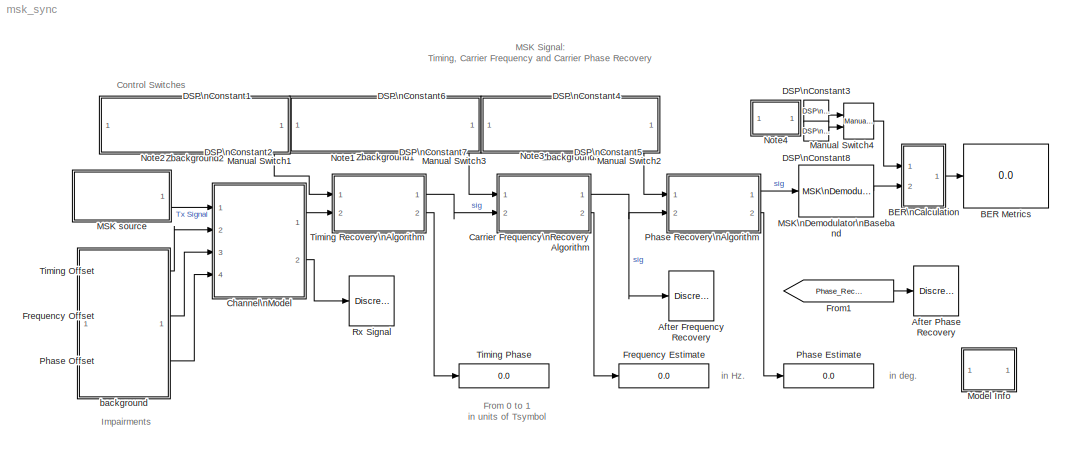
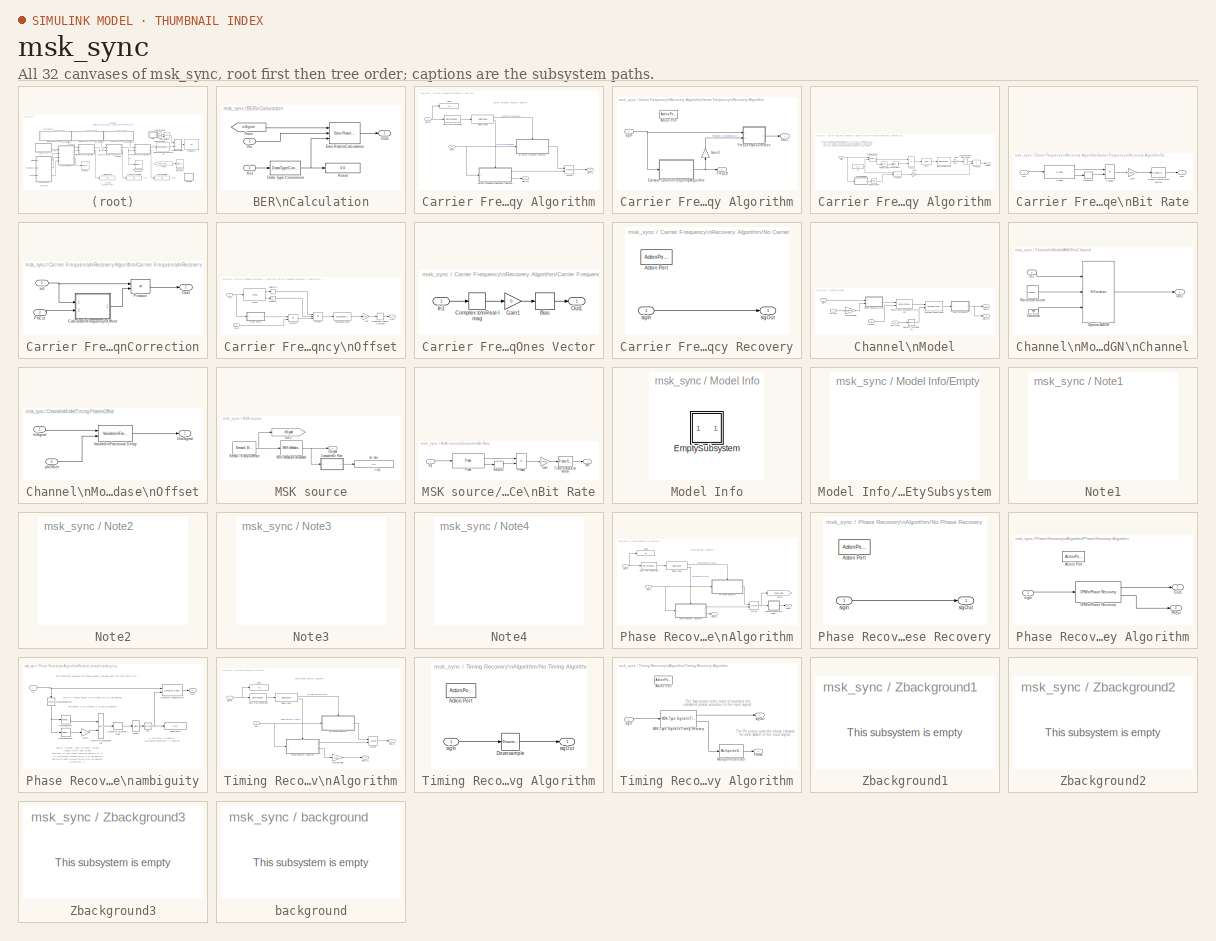
[diagram: thumbnail index - all 32 canvases of the model, root first then tree order]
MODEL msk_sync
KIND model
CONFIG InitFcn = 	\n
CONFIG PreLoadFcn = warning off MATLAB:dispatcher:InexactMatch;\n
WORKSPACE source: external: M-Code  (data not in archive)
BLOCK [Reference] After Frequency Recovery  REF=commsink2/Discrete-Time\nScatter Plot\nScope
  AxisGrid = on
  FigPos = [435 41 358 358]
  FrameNumber = off
  LineColors = b
  LineMarkers = .
  Ports = [1]
  ShowPortLabels = on
  SourceBlock = commsink2/Discrete-Time\nScatter Plot\nScope
  SourceType = Discrete-Time Scatter Plot Scope
  Tag = ScatterPlot
  block_type_ = scatter
  fading = on
  figTitle = Scatter Plot
  inphaseLabel = In-phase Amplitude
  numLinesMax = 8
  numNewFrames = 1000
  numTraces = 2000
  offsetEye = 0
  openScopeAtSimStart = on
  quadratureLabel = Quadrature Amplitude
  render = on
  sampPerSymb = 1
  xMax = 1.5
  xMin = -1.5
  yMax = 1.5
  yMin = -1.5
BLOCK [Reference] After Phase Recovery  REF=commsink2/Discrete-Time\nScatter Plot\nScope
  AxisGrid = on
  FigPos = [832 41 358 358]
  FrameNumber = off
  LineColors = b
  LineMarkers = .
  Ports = [1]
  ShowPortLabels = on
  SourceBlock = commsink2/Discrete-Time\nScatter Plot\nScope
  SourceType = Discrete-Time Scatter Plot Scope
  Tag = ScatterPlot
  block_type_ = scatter
  fading = on
  figTitle = Scatter Plot
  inphaseLabel = In-phase Amplitude
  numLinesMax = 8
  numNewFrames = 1000
  numTraces = 2000
  offsetEye = 0
  openScopeAtSimStart = on
  quadratureLabel = Quadrature Amplitude
  render = on
  sampPerSymb = 1
  xMax = 1.5
  xMin = -1.5
  yMax = 1.5
  yMin = -1.5
BLOCK [Display] BER Metrics
  Decimation = 1
  Ports = [1]
BLOCK [SubSystem] BER\nCalculation
  MaskDisplay = disp('BER')
  MaskIconFrame = on
  MaskIconOpaque = on
  MaskIconRotate = none
  MaskIconUnits = autoscale
  MinAlgLoopOccurrences = off
  Ports = [2, 1]
  PropExecContextAcrossSSBoundary = on
  RTWSystemCode = Auto
  TreatAsAtomicUnit = off
BLOCK [DataTypeConversion] BER\nCalculation/Data Type Conversion
  OutDataTypeMode = double
  RndMeth = Floor
  SaturateOnIntegerOverflow = off
BLOCK [Reference] BER\nCalculation/Error Rate\nCalculation  REF=commsink2/Error Rate\nCalculation
  N = trDepth+2 % Traceback Depth + Delay due to Timing Recovery
  PMode = Port
  Ports = [3, 1]
  RsMode2 = on
  SourceBlock = commsink2/Error Rate\nCalculation
  SourceType = Error Rate Calculation
  WsName = ErrorVec
  cp_mode = Entire frame
  maxBits = 1e6
  numErr = 100
  st_delay = 0
  stop = off
  subframe = []
BLOCK [From] BER\nCalculation/From
  CloseFcn = tagdialog Close
  DialogController = Simulink.DDGSource
  GotoTag = inSignal
BLOCK [Outport] BER\nCalculation/Out1
  BusOutputAsStruct = off
  IconDisplay = Port number
BLOCK [Display] BER\nCalculation/Reset
  Decimation = 1
  Ports = [1]
BLOCK [Inport] BER\nCalculation/Rst
  IconDisplay = Port number
  LatchInput = off
BLOCK [Inport] BER\nCalculation/Rx
  IconDisplay = Port number
  LatchInput = off
  Port = 2
BLOCK [SubSystem] Carrier Frequency\nRecovery Algorithm
  MaskDisplay = disp('Carrier Freq.\\nRecovery')
  MaskIconFrame = on
  MaskIconOpaque = on
  MaskIconRotate = none
  MaskIconUnits = autoscale
  MaskType = Carrier Frequency Recovery algorithm
  MinAlgLoopOccurrences = off
  Ports = [2, 2]
  PropExecContextAcrossSSBoundary = on
  RTWSystemCode = Auto
  TreatAsAtomicUnit = off
BLOCK [SubSystem] Carrier Frequency\nRecovery Algorithm/Carrier Frequency\nRecovery Algorithm
  MinAlgLoopOccurrences = off
  Ports = [1, 2, 0, 0, 0, 0, 0, 1]
  PropExecContextAcrossSSBoundary = on
  RTWSystemCode = Auto
  TreatAsAtomicUnit = on
BLOCK [ActionPort] Carrier Frequency\nRecovery Algorithm/Carrier Frequency\nRecovery Algorithm/Action Port
  ActionType = case
  InitializeStates = reset
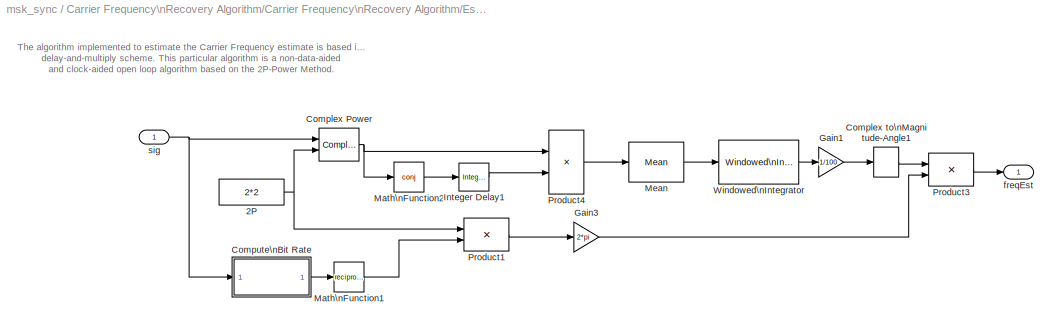
BLOCK [SubSystem] Carrier Frequency\nRecovery Algorithm/Carrier Frequency\nRecovery Algorithm/Estimate Carrier\nFrequency Algorithm
  MinAlgLoopOccurrences = off
  Ports = [1, 1]
  PropExecContextAcrossSSBoundary = on
  RTWSystemCode = Auto
  TreatAsAtomicUnit = off
BLOCK [Constant] Carrier Frequency\nRecovery Algorithm/Carrier Frequency\nRecovery Algorithm/Estimate Carrier\nFrequency Algorithm/2P
  Value = 2*2
BLOCK [Reference] Carrier Frequency\nRecovery Algorithm/Carrier Frequency\nRecovery Algorithm/Estimate Carrier\nFrequency Algorithm/Complex Power  REF=commblksprivate/Complex Power
  Ports = [2, 1]
  ShowPortLabels = on
  SourceBlock = commblksprivate/Complex Power
  SourceType = Complex Power
BLOCK [ComplexToMagnitudeAngle] Carrier Frequency\nRecovery Algorithm/Carrier Frequency\nRecovery Algorithm/Estimate Carrier\nFrequency Algorithm/Complex to\nMagnitude-Angle1
  Output = Angle
  Ports = [1, 1]
BLOCK [SubSystem] Carrier Frequency\nRecovery Algorithm/Carrier Frequency\nRecovery Algorithm/Estimate Carrier\nFrequency Algorithm/Compute\nBit Rate
  MaskDescription = Bit rate calculation based on probed sample time and a specified number of bits per sample.
  MaskDisplay = disp('Compute\\nBit Rate')
  MaskEnableString = on
  MaskIconFrame = on
  MaskIconOpaque = on
  MaskIconRotate = none
  MaskIconUnits = autoscale
  MaskPromptString = Oversampling factor:
  MaskStyleString = edit
  MaskToolTipString = on
  MaskTunableValueString = on
  MaskType = Compute bit rate of signal
  MaskValueString = 1
  MaskVariables = overSamp=@1;
  MaskVisibilityString = on
  MinAlgLoopOccurrences = off
  Ports = [1, 1]
  PropExecContextAcrossSSBoundary = on
  RTWSystemCode = Auto
  TreatAsAtomicUnit = off
BLOCK [Reference] Carrier Frequency\nRecovery Algorithm/Carrier Frequency\nRecovery Algorithm/Estimate Carrier\nFrequency Algorithm/Compute\nBit Rate/Frame Status\nConversion  REF=dspsigattribs/Frame Status\nConversion
  Ports = [1, 1]
  ShowPortLabels = off
  SourceBlock = dspsigattribs/Frame Status\nConversion
  SourceType = Frame Status Conversion
  growRefPort = off
  outframe = Frame-based
BLOCK [Gain] Carrier Frequency\nRecovery Algorithm/Carrier Frequency\nRecovery Algorithm/Estimate Carrier\nFrequency Algorithm/Compute\nBit Rate/Gain
  Gain = 1/overSamp
BLOCK [Probe] Carrier Frequency\nRecovery Algorithm/Carrier Frequency\nRecovery Algorithm/Estimate Carrier\nFrequency Algorithm/Compute\nBit Rate/Probe
  Ports = [1, 2]
  ProbeComplexSignal = off
BLOCK [Product] Carrier Frequency\nRecovery Algorithm/Carrier Frequency\nRecovery Algorithm/Estimate Carrier\nFrequency Algorithm/Compute\nBit Rate/Product
  Inputs = */
  Ports = [2, 1]
  RndMeth = Floor
BLOCK [Selector] Carrier Frequency\nRecovery Algorithm/Carrier Frequency\nRecovery Algorithm/Estimate Carrier\nFrequency Algorithm/Compute\nBit Rate/Selector2
  Elements = [1 ]
  InputPortWidth = 2
  Ports = [1, 1]
BLOCK [Outport] Carrier Frequency\nRecovery Algorithm/Carrier Frequency\nRecovery Algorithm/Estimate Carrier\nFrequency Algorithm/Compute\nBit Rate/rate
  BusOutputAsStruct = off
  IconDisplay = Port number
BLOCK [Inport] Carrier Frequency\nRecovery Algorithm/Carrier Frequency\nRecovery Algorithm/Estimate Carrier\nFrequency Algorithm/Compute\nBit Rate/sig
  IconDisplay = Port number
  LatchInput = off
BLOCK [Gain] Carrier Frequency\nRecovery Algorithm/Carrier Frequency\nRecovery Algorithm/Estimate Carrier\nFrequency Algorithm/Gain1
  Gain = 1/100
BLOCK [Gain] Carrier Frequency\nRecovery Algorithm/Carrier Frequency\nRecovery Algorithm/Estimate Carrier\nFrequency Algorithm/Gain3
  Gain = 2*pi
BLOCK [Reference] Carrier Frequency\nRecovery Algorithm/Carrier Frequency\nRecovery Algorithm/Estimate Carrier\nFrequency Algorithm/Integer Delay1  REF=dspobslib/Integer Delay
  Ports = [1, 1]
  SourceBlock = dspobslib/Integer Delay
  SourceType = Integer Delay
  delay = 1
  ic = 1
  reset_popup = None
BLOCK [Math] Carrier Frequency\nRecovery Algorithm/Carrier Frequency\nRecovery Algorithm/Estimate Carrier\nFrequency Algorithm/Math\nFunction1
  Operator = reciprocal
  Ports = [1, 1]
BLOCK [Math] Carrier Frequency\nRecovery Algorithm/Carrier Frequency\nRecovery Algorithm/Estimate Carrier\nFrequency Algorithm/Math\nFunction2
  Operator = conj
  Ports = [1, 1]
BLOCK [Reference] Carrier Frequency\nRecovery Algorithm/Carrier Frequency\nRecovery Algorithm/Estimate Carrier\nFrequency Algorithm/Mean  REF=dspstat3/Mean
  Ports = [1, 1]
  SourceBlock = dspstat3/Mean
  SourceType = Mean
  accumFracLength = 30
  accumMode = Same as input
  accumWordLength = 32
  additionalParams = off
  allowOverrides = on
  outputFracLength = 30
  outputMode = Same as accumulator
  outputWordLength = 32
  overflowMode = off
  reset_popup = None
  roundingMode = Floor
  run = off
BLOCK [Product] Carrier Frequency\nRecovery Algorithm/Carrier Frequency\nRecovery Algorithm/Estimate Carrier\nFrequency Algorithm/Product1
  InputSameDT = off
  Inputs = **
  Ports = [2, 1]
  RndMeth = Floor
BLOCK [Product] Carrier Frequency\nRecovery Algorithm/Carrier Frequency\nRecovery Algorithm/Estimate Carrier\nFrequency Algorithm/Product3
  InputSameDT = off
  Inputs = */
  Ports = [2, 1]
  RndMeth = Floor
BLOCK [Product] Carrier Frequency\nRecovery Algorithm/Carrier Frequency\nRecovery Algorithm/Estimate Carrier\nFrequency Algorithm/Product4
  InputSameDT = off
  Ports = [2, 1]
  RndMeth = Floor
BLOCK [Reference] Carrier Frequency\nRecovery Algorithm/Carrier Frequency\nRecovery Algorithm/Estimate Carrier\nFrequency Algorithm/Windowed\nIntegrator  REF=commfilt2/Windowed\nIntegrator
  Ports = [1, 1]
  ShowPortLabels = off
  SourceBlock = commfilt2/Windowed\nIntegrator
  SourceType = Windowed Integrator
  integperiod = 100
BLOCK [Outport] Carrier Frequency\nRecovery Algorithm/Carrier Frequency\nRecovery Algorithm/Estimate Carrier\nFrequency Algorithm/freqEst
  BusOutputAsStruct = off
  IconDisplay = Port number
BLOCK [Inport] Carrier Frequency\nRecovery Algorithm/Carrier Frequency\nRecovery Algorithm/Estimate Carrier\nFrequency Algorithm/sig
  IconDisplay = Port number
  LatchInput = off
BLOCK [Outport] Carrier Frequency\nRecovery Algorithm/Carrier Frequency\nRecovery Algorithm/FreqEst
  BusOutputAsStruct = off
  IconDisplay = Port number
  InitialOutput = 0
  OutputWhenDisabled = reset
  Port = 2
BLOCK [SubSystem] Carrier Frequency\nRecovery Algorithm/Carrier Frequency\nRecovery Algorithm/Frequency\nCorrection
  MaskDisplay = disp('Frequency\\nCorrection');
  MaskIconFrame = on
  MaskIconOpaque = on
  MaskIconRotate = none
  MaskIconUnits = autoscale
  MinAlgLoopOccurrences = off
  Ports = [2, 1]
  PropExecContextAcrossSSBoundary = on
  RTWSystemCode = Auto
  TreatAsAtomicUnit = off
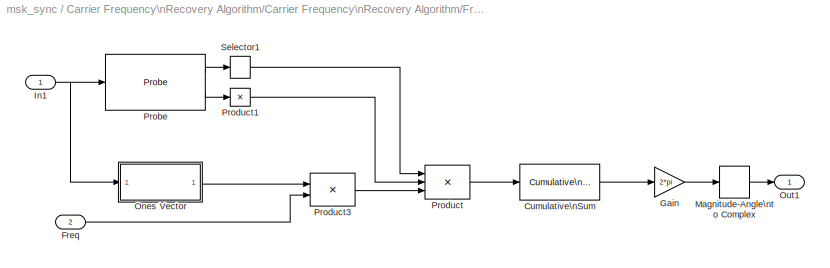
BLOCK [SubSystem] Carrier Frequency\nRecovery Algorithm/Carrier Frequency\nRecovery Algorithm/Frequency\nCorrection/Calculate\nFrequency\nOffset
  MaskDisplay = disp('Calculate\\nFrequency\\nOffset');
  MaskIconFrame = on
  MaskIconOpaque = on
  MaskIconRotate = none
  MaskIconUnits = autoscale
  MinAlgLoopOccurrences = off
  Ports = [2, 1]
  PropExecContextAcrossSSBoundary = on
  RTWSystemCode = Auto
  TreatAsAtomicUnit = off
BLOCK [Reference] Carrier Frequency\nRecovery Algorithm/Carrier Frequency\nRecovery Algorithm/Frequency\nCorrection/Calculate\nFrequency\nOffset/Cumulative\nSum  REF=dspmathops/Cumulative\nSum
  Ports = [1, 1]
  SourceBlock = dspmathops/Cumulative\nSum
  SourceType = Cumulative Sum
  dim = Channels (running sum)
  reset_popup = None
BLOCK [Inport] Carrier Frequency\nRecovery Algorithm/Carrier Frequency\nRecovery Algorithm/Frequency\nCorrection/Calculate\nFrequency\nOffset/Freq
  IconDisplay = Port number
  LatchInput = off
  Port = 2
BLOCK [Gain] Carrier Frequency\nRecovery Algorithm/Carrier Frequency\nRecovery Algorithm/Frequency\nCorrection/Calculate\nFrequency\nOffset/Gain
  Gain = 2*pi
BLOCK [Inport] Carrier Frequency\nRecovery Algorithm/Carrier Frequency\nRecovery Algorithm/Frequency\nCorrection/Calculate\nFrequency\nOffset/In1
  IconDisplay = Port number
  LatchInput = off
BLOCK [MagnitudeAngleToComplex] Carrier Frequency\nRecovery Algorithm/Carrier Frequency\nRecovery Algorithm/Frequency\nCorrection/Calculate\nFrequency\nOffset/Magnitude-Angle\nto Complex
  ConstantPart = 1
  Input = Angle
  Ports = [1, 1]
BLOCK [SubSystem] Carrier Frequency\nRecovery Algorithm/Carrier Frequency\nRecovery Algorithm/Frequency\nCorrection/Calculate\nFrequency\nOffset/Ones Vector
  MaskDescription = Create a vector of equals whose length is equal to input portwidth.
  MaskDisplay = disp('Ones(1:length)')
  MaskIconFrame = on
  MaskIconOpaque = on
  MaskIconRotate = none
  MaskIconUnits = autoscale
  MaskType = Ones Vector
  MinAlgLoopOccurrences = off
  Ports = [1, 1]
  PropExecContextAcrossSSBoundary = on
  RTWSystemCode = Auto
  TreatAsAtomicUnit = off
BLOCK [Bias] Carrier Frequency\nRecovery Algorithm/Carrier Frequency\nRecovery Algorithm/Frequency\nCorrection/Calculate\nFrequency\nOffset/Ones Vector/Bias
  Bias = 1
  SaturateOnIntegerOverflow = off
BLOCK [ComplexToRealImag] Carrier Frequency\nRecovery Algorithm/Carrier Frequency\nRecovery Algorithm/Frequency\nCorrection/Calculate\nFrequency\nOffset/Ones Vector/Complex to\nReal-Imag
  Output = Real
  Ports = [1, 1]
BLOCK [Gain] Carrier Frequency\nRecovery Algorithm/Carrier Frequency\nRecovery Algorithm/Frequency\nCorrection/Calculate\nFrequency\nOffset/Ones Vector/Gain1
  Gain = 0
  OutDataTypeMode = Inherit via internal rule
  ParameterDataTypeMode = Inherit via internal rule
  SaturateOnIntegerOverflow = off
BLOCK [Inport] Carrier Frequency\nRecovery Algorithm/Carrier Frequency\nRecovery Algorithm/Frequency\nCorrection/Calculate\nFrequency\nOffset/Ones Vector/In1
  IconDisplay = Port number
  LatchInput = off
BLOCK [Outport] Carrier Frequency\nRecovery Algorithm/Carrier Frequency\nRecovery Algorithm/Frequency\nCorrection/Calculate\nFrequency\nOffset/Ones Vector/Out1
  BusOutputAsStruct = off
  IconDisplay = Port number
BLOCK [Outport] Carrier Frequency\nRecovery Algorithm/Carrier Frequency\nRecovery Algorithm/Frequency\nCorrection/Calculate\nFrequency\nOffset/Out1
  BusOutputAsStruct = off
  IconDisplay = Port number
BLOCK [Probe] Carrier Frequency\nRecovery Algorithm/Carrier Frequency\nRecovery Algorithm/Frequency\nCorrection/Calculate\nFrequency\nOffset/Probe
  Ports = [1, 2]
  ProbeComplexSignal = off
  ProbeSignalDimensions = on
  ProbeWidth = off
BLOCK [Product] Carrier Frequency\nRecovery Algorithm/Carrier Frequency\nRecovery Algorithm/Frequency\nCorrection/Calculate\nFrequency\nOffset/Product
  Inputs = */*
  Ports = [3, 1]
  RndMeth = Floor
BLOCK [Product] Carrier Frequency\nRecovery Algorithm/Carrier Frequency\nRecovery Algorithm/Frequency\nCorrection/Calculate\nFrequency\nOffset/Product1
  Inputs = 1
  Ports = [1, 1]
  RndMeth = Floor
BLOCK [Product] Carrier Frequency\nRecovery Algorithm/Carrier Frequency\nRecovery Algorithm/Frequency\nCorrection/Calculate\nFrequency\nOffset/Product3
  InputSameDT = off
  Inputs = **
  Ports = [2, 1]
  RndMeth = Floor
BLOCK [Selector] Carrier Frequency\nRecovery Algorithm/Carrier Frequency\nRecovery Algorithm/Frequency\nCorrection/Calculate\nFrequency\nOffset/Selector1
  Elements = [1 ]
  InputPortWidth = 2
  Ports = [1, 1]
BLOCK [Inport] Carrier Frequency\nRecovery Algorithm/Carrier Frequency\nRecovery Algorithm/Frequency\nCorrection/In1
  IconDisplay = Port number
  LatchInput = off
BLOCK [Outport] Carrier Frequency\nRecovery Algorithm/Carrier Frequency\nRecovery Algorithm/Frequency\nCorrection/Out1
  BusOutputAsStruct = off
  IconDisplay = Port number
BLOCK [Inport] Carrier Frequency\nRecovery Algorithm/Carrier Frequency\nRecovery Algorithm/Frequency\nCorrection/PhEst
  IconDisplay = Port number
  LatchInput = off
  Port = 2
BLOCK [Product] Carrier Frequency\nRecovery Algorithm/Carrier Frequency\nRecovery Algorithm/Frequency\nCorrection/Product
  Ports = [2, 1]
  RndMeth = Floor
BLOCK [Gain] Carrier Frequency\nRecovery Algorithm/Carrier Frequency\nRecovery Algorithm/Gain3
  Gain = -1
BLOCK [Outport] Carrier Frequency\nRecovery Algorithm/Carrier Frequency\nRecovery Algorithm/Out1
  BusOutputAsStruct = off
  IconDisplay = Port number
BLOCK [Inport] Carrier Frequency\nRecovery Algorithm/Carrier Frequency\nRecovery Algorithm/sigIn
  IconDisplay = Port number
  LatchInput = off
BLOCK [Display] Carrier Frequency\nRecovery Algorithm/Case
  Decimation = 1
  Ports = [1]
BLOCK [DataTypeConversion] Carrier Frequency\nRecovery Algorithm/Data Type Conversion
  OutDataTypeMode = double
  RndMeth = Floor
  SaturateOnIntegerOverflow = off
BLOCK [Merge] Carrier Frequency\nRecovery Algorithm/Merge
  Ports = [2, 1]
BLOCK [SubSystem] Carrier Frequency\nRecovery Algorithm/No Carrier Frequency Recovery
  MinAlgLoopOccurrences = off
  Ports = [1, 1, 0, 0, 0, 0, 0, 1]
  PropExecContextAcrossSSBoundary = on
  RTWSystemCode = Auto
  TreatAsAtomicUnit = on
BLOCK [ActionPort] Carrier Frequency\nRecovery Algorithm/No Carrier Frequency Recovery/Action Port
  ActionType = case
BLOCK [Inport] Carrier Frequency\nRecovery Algorithm/No Carrier Frequency Recovery/sigIn
  IconDisplay = Port number
  LatchInput = off
BLOCK [Outport] Carrier Frequency\nRecovery Algorithm/No Carrier Frequency Recovery/sigOut
  BusOutputAsStruct = off
  IconDisplay = Port number
BLOCK [SwitchCase] Carrier Frequency\nRecovery Algorithm/Switch Case
  CaseConditions = {0,1}
  CaseShowDefault = off
  Ports = [1, 2]
BLOCK [Inport] Carrier Frequency\nRecovery Algorithm/sigIn
  IconDisplay = Port number
  LatchInput = off
  Port = 2
BLOCK [Inport] Carrier Frequency\nRecovery Algorithm/sigIn1
  IconDisplay = Port number
  LatchInput = off
BLOCK [Outport] Carrier Frequency\nRecovery Algorithm/sigOut
  BusOutputAsStruct = off
  IconDisplay = Port number
BLOCK [Outport] Carrier Frequency\nRecovery Algorithm/sigOut1
  BusOutputAsStruct = off
  IconDisplay = Port number
  Port = 2
BLOCK [SubSystem] Channel\nModel
  MaskDisplay = plot(-10,-10,110, 110,[05 15 10 10 05 10 18 14 13 7.5 13 41 44 47 50 53 57 \n59 100-[13 7.5 13 14 18 10 5 10 10 15 5]],[70 70 70 85 92 85 79 82 90 88.5 \n90 90 87 93 87 93 87 90 90 88.5 90 82 79 85 92 85 70 70 70]-30);\n
  MaskIconFrame = on
  MaskIconOpaque = on
  MaskIconRotate = none
  MaskIconUnits = autoscale
  MaskType = RF Impairments
  MinAlgLoopOccurrences = off
  Ports = [4, 2]
  PropExecContextAcrossSSBoundary = on
  RTWSystemCode = Auto
  TreatAsAtomicUnit = off
BLOCK [SubSystem] Channel\nModel/AWGN\nChannel
  AncestorBlock = commchan2/AWGN\nChannel
  MaskCallbackString = |commblkawgnchan2(gcb,'Mode');|||||||
  MaskDescription = Add white Gaussian noise to the input signal. The input and output signals can be real or complex. This block supports multichannel input and output signals as well as frame-based processing.\n\nWhen using either of the variance modes with complex inputs, the variance values are equally divided among the real and imaginary components of the input signal.
  MaskDisplay = plot(-10,-10,110, 110,[05 15 10 10 05 10 18 14 13 7.5 13 41 44 47 50 53 57\n59 100-[13 7.5 13 14 18 10 5 10 10 15 5]],[70 70 70 85 92 85 79 82 90 88.5\n90 90 87 93 87 93 87 90 90 88.5 90 82 79 85 92 85 70 70 70]);\ndisp('AWGN');\nport_label('input',s.i1,s.i1s);\nport_label('input',s.i2,s.i2s);\nport_label('output',s.o1,s.o1s);\n
  MaskEnableString = on,on,on,on,off,on,on,on,off
  MaskHelp = helpview(commbhelp)
  MaskIconFrame = on
  MaskIconOpaque = on
  MaskIconRotate = none
  MaskIconUnits = autoscale
  MaskInitialization = [mode,s]=commblkawgnchan2(gcb,'init');\nif ~isempty(s.status) error(s.status); end
  MaskPromptString = Initial seed:|Mode:|Eb/No (dB):|Es/No (dB):|SNR (dB):|Number of bits per symbol:|Input signal power (watts):|Symbol period (s):|Variance:
  MaskSelfModifiable = on
  MaskStyleString = edit,popup(Signal to noise ratio  (Eb/No)|Signal to noise ratio  (Es/No)|Signal to noise ratio  (SNR)|Variance from mask|Variance from port),edit,edit,edit,edit,edit,edit,edit
  MaskTabNameString = ,,,,,,,,
  MaskToolTipString = on,on,on,on,on,on,on,on,on
  MaskTunableValueString = off,off,on,on,on,off,on,off,on
  MaskType = AWGN Channel
  MaskValueString = 67|Signal to noise ratio  (Eb/No)|60|10|10|1|1|tsym|1
  MaskVarAliasString = ,,,,,,,,
  MaskVariables = seed=@1;noiseMode=@2;EbNodB=@3;EsNodB=@4;SNRdB=@5;bitsPerSym=@6;Ps=@7;Tsym=@8;variance=@9;
  MaskVisibilityString = on,on,on,off,off,on,on,on,off
  MinAlgLoopOccurrences = off
  Ports = [1, 1]
  PropExecContextAcrossSSBoundary = on
  RTWSystemCode = Auto
  TreatAsAtomicUnit = off
BLOCK [S-Function] Channel\nModel/AWGN\nChannel/Dynamic AWGN
  FunctionName = scomawgnchan2
  MaskIconFrame = on
  MaskIconOpaque = on
  MaskIconRotate = none
  MaskIconUnits = autoscale
  Parameters = noiseMode, EbNodB, EsNodB, SNRdB, bitsPerSym, Ps, Tsym, variance
  Ports = [3, 1]
BLOCK [Inport] Channel\nModel/AWGN\nChannel/In1
  IconDisplay = Port number
  LatchInput = off
BLOCK [Outport] Channel\nModel/AWGN\nChannel/Out1
  BusOutputAsStruct = off
  IconDisplay = Port number
BLOCK [Reference] Channel\nModel/AWGN\nChannel/Random\nSource  REF=dspsrcs4/Random\nSource
  CltLength = 12
  DataType = Double
  Diagnostics = AllowInheritedTsInSrc
  Inherit = on
  Max = 1
  Mean = 0
  Min = 0
  NormMethod = Ziggurat
  OutComplex = Real
  Ports = [0, 1]
  RepMode = Specify seed
  SampFrame = 1
  SampMode = Discrete
  SampTime = 1
  Seed = seed
  SourceBlock = dspsrcs4/Random\nSource
  SourceType = Random Source
  SrcType = Gaussian
  Var = 1
BLOCK [Ground] Channel\nModel/AWGN\nChannel/Variance
BLOCK [Reference] Channel\nModel/Complex Phase\nShift  REF=commutil2/Complex Phase\nShift
  Ports = [2, 1]
  ShowPortLabels = on
  SourceBlock = commutil2/Complex Phase\nShift
  SourceType = Complex Phase Shift
BLOCK [Reference] Channel\nModel/Degrees to\nRadians  REF=simulink_extras/Transformations/Degrees to\nRadians
  Ports = [1, 1]
  ShowPortLabels = on
  SourceBlock = simulink_extras/Transformations/Degrees to\nRadians
  SourceType = DegreesToRadians
BLOCK [Reference] Channel\nModel/Phase//Input\nFrequency\nOffset  REF=commblksprivate/Phase//Input\nFrequency\nOffset
  Ports = [2, 1]
  ShowPortLabels = on
  SourceBlock = commblksprivate/Phase//Input\nFrequency\nOffset
  SourceType = Phase/Input Frequency Offset
  phaseOffset = 0
BLOCK [SubSystem] Channel\nModel/Timing Phase\nOffset
  MaskDisplay = disp('Timing Phase\\nOffset')
  MaskIconFrame = on
  MaskIconOpaque = on
  MaskIconRotate = none
  MaskIconUnits = autoscale
  MinAlgLoopOccurrences = off
  Ports = [2, 1]
  PropExecContextAcrossSSBoundary = on
  RTWSystemCode = Auto
  TreatAsAtomicUnit = off
BLOCK [Inport] Channel\nModel/Timing Phase\nOffset/InSignal
  IconDisplay = Port number
  LatchInput = off
BLOCK [Outport] Channel\nModel/Timing Phase\nOffset/OutSignal
  BusOutputAsStruct = off
  IconDisplay = Port number
BLOCK [Reference] Channel\nModel/Timing Phase\nOffset/Variable\nFractional Delay  REF=dspsigops/Variable\nFractional Delay
  L = 4
  Ports = [2, 1]
  R = 10
  SourceBlock = dspsigops/Variable\nFractional Delay
  SourceType = Variable Fractional Delay
  alpha = 1
  dmax = 100
  ic = 0
  mode = Linear Interpolation
BLOCK [Inport] Channel\nModel/Timing Phase\nOffset/phOffset
  IconDisplay = Port number
  LatchInput = off
  Port = 2
BLOCK [Inport] Channel\nModel/freqDrift
  IconDisplay = Port number
  LatchInput = off
  Port = 3
BLOCK [Gain] Channel\nModel/overSampling
  Gain = sampPerSymb
BLOCK [Inport] Channel\nModel/phOffset
  IconDisplay = Port number
  LatchInput = off
  Port = 4
BLOCK [Inport] Channel\nModel/sigIn
  IconDisplay = Port number
  LatchInput = off
BLOCK [Outport] Channel\nModel/sigOut
  BusOutputAsStruct = off
  IconDisplay = Port number
BLOCK [Outport] Channel\nModel/sigOut1
  BusOutputAsStruct = off
  IconDisplay = Port number
  Port = 2
BLOCK [Inport] Channel\nModel/timJitter
  IconDisplay = Port number
  LatchInput = off
  Port = 2
BLOCK [Reference] DSP\nConstant1  REF=dspsrcs4/DSP\nConstant
  AttributesFormatString = <path>
  FramebasedOutput = off
  InterpretAs1D = on
  Ports = [0, 1]
  SampleMode = Discrete
  ShowPortLabels = on
  SourceBlock = dspsrcs4/DSP\nConstant
  SourceType = DSP Constant
  Ts = tsym*1000
  Value = 1
  additionalParams = off
  allowOverrides = on
  continuousOutput = Sample-based
  dataType = Inherit from 'Constant value'
  discreteOutput = Sample-based (interpret vectors as 1-D)
  fracBitsMode = Best precision
  framePeriod = tsym*1000
  isSigned = on
  numFracBits = 15
  sampTime = tsym*1000
  udDataType = sfix(16)
  wordLen = 16
BLOCK [Reference] DSP\nConstant2  REF=dspsrcs4/DSP\nConstant
  AttributesFormatString = <path>
  FramebasedOutput = off
  InterpretAs1D = on
  Ports = [0, 1]
  SampleMode = Discrete
  ShowPortLabels = on
  SourceBlock = dspsrcs4/DSP\nConstant
  SourceType = DSP Constant
  Ts = tsym*1000
  Value = 0
  additionalParams = off
  allowOverrides = on
  continuousOutput = Sample-based
  dataType = Inherit from 'Constant value'
  discreteOutput = Sample-based (interpret vectors as 1-D)
  fracBitsMode = Best precision
  framePeriod = tsym*1000
  isSigned = on
  numFracBits = 15
  sampTime = tsym*1000
  udDataType = sfix(16)
  wordLen = 16
BLOCK [Reference] DSP\nConstant3  REF=dspsrcs4/DSP\nConstant
  AttributesFormatString = <path>
  FramebasedOutput = off
  InterpretAs1D = on
  Ports = [0, 1]
  SampleMode = Discrete
  ShowPortLabels = on
  SourceBlock = dspsrcs4/DSP\nConstant
  SourceType = DSP Constant
  Ts = tsym*1000
  Value = 1
  additionalParams = off
  allowOverrides = on
  continuousOutput = Sample-based
  dataType = Inherit from 'Constant value'
  discreteOutput = Sample-based (interpret vectors as 1-D)
  fracBitsMode = Best precision
  framePeriod = tsym*1000
  isSigned = on
  numFracBits = 15
  sampTime = tsym*1000
  udDataType = sfix(16)
  wordLen = 16
BLOCK [Reference] DSP\nConstant4  REF=dspsrcs4/DSP\nConstant
  AttributesFormatString = <path>
  FramebasedOutput = off
  InterpretAs1D = on
  Ports = [0, 1]
  SampleMode = Discrete
  ShowPortLabels = on
  SourceBlock = dspsrcs4/DSP\nConstant
  SourceType = DSP Constant
  Ts = tsym*1000
  Value = 1
  additionalParams = off
  allowOverrides = on
  continuousOutput = Sample-based
  dataType = Inherit from 'Constant value'
  discreteOutput = Sample-based (interpret vectors as 1-D)
  fracBitsMode = Best precision
  framePeriod = tsym*1000
  isSigned = on
  numFracBits = 15
  sampTime = tsym*1000
  udDataType = sfix(16)
  wordLen = 16
BLOCK [Reference] DSP\nConstant5  REF=dspsrcs4/DSP\nConstant
  AttributesFormatString = <path>
  FramebasedOutput = off
  InterpretAs1D = on
  Ports = [0, 1]
  SampleMode = Discrete
  ShowPortLabels = on
  SourceBlock = dspsrcs4/DSP\nConstant
  SourceType = DSP Constant
  Ts = tsym*1000
  Value = 0
  additionalParams = off
  allowOverrides = on
  continuousOutput = Sample-based
  dataType = Inherit from 'Constant value'
  discreteOutput = Sample-based (interpret vectors as 1-D)
  fracBitsMode = Best precision
  framePeriod = tsym*1000
  isSigned = on
  numFracBits = 15
  sampTime = tsym*1000
  udDataType = sfix(16)
  wordLen = 16
BLOCK [Reference] DSP\nConstant6  REF=dspsrcs4/DSP\nConstant
  AttributesFormatString = <path>
  FramebasedOutput = off
  InterpretAs1D = on
  Ports = [0, 1]
  SampleMode = Discrete
  ShowPortLabels = on
  SourceBlock = dspsrcs4/DSP\nConstant
  SourceType = DSP Constant
  Ts = tsym*1000
  Value = 1
  additionalParams = off
  allowOverrides = on
  continuousOutput = Sample-based
  dataType = Inherit from 'Constant value'
  discreteOutput = Sample-based (interpret vectors as 1-D)
  fracBitsMode = Best precision
  framePeriod = tsym*1000
  isSigned = on
  numFracBits = 15
  sampTime = tsym*1000
  udDataType = sfix(16)
  wordLen = 16
BLOCK [Reference] DSP\nConstant7  REF=dspsrcs4/DSP\nConstant
  AttributesFormatString = <path>
  FramebasedOutput = off
  InterpretAs1D = on
  Ports = [0, 1]
  SampleMode = Discrete
  ShowPortLabels = on
  SourceBlock = dspsrcs4/DSP\nConstant
  SourceType = DSP Constant
  Ts = tsym*1000
  Value = 0
  additionalParams = off
  allowOverrides = on
  continuousOutput = Sample-based
  dataType = Inherit from 'Constant value'
  discreteOutput = Sample-based (interpret vectors as 1-D)
  fracBitsMode = Best precision
  framePeriod = tsym*1000
  isSigned = on
  numFracBits = 15
  sampTime = tsym*1000
  udDataType = sfix(16)
  wordLen = 16
BLOCK [Reference] DSP\nConstant8  REF=dspsrcs4/DSP\nConstant
  AttributesFormatString = <path>
  FramebasedOutput = off
  InterpretAs1D = on
  Ports = [0, 1]
  SampleMode = Discrete
  ShowPortLabels = on
  SourceBlock = dspsrcs4/DSP\nConstant
  SourceType = DSP Constant
  Ts = tsym*1000
  Value = 0
  additionalParams = off
  allowOverrides = on
  continuousOutput = Sample-based
  dataType = Inherit from 'Constant value'
  discreteOutput = Sample-based (interpret vectors as 1-D)
  fracBitsMode = Best precision
  framePeriod = tsym*1000
  isSigned = on
  numFracBits = 15
  sampTime = tsym*1000
  udDataType = sfix(16)
  wordLen = 16
BLOCK [Display] Frequency Estimate
  Decimation = 1
  Ports = [1]
BLOCK [Constant] Frequency Offset
  Value = 50
BLOCK [From] From1
  CloseFcn = tagdialog Close
  DialogController = Simulink.DDGSource
  GotoTag = Phase_Recovered
BLOCK [SubSystem] MSK source
  MaskDisplay = disp('MSK\\nSource')
  MaskIconFrame = on
  MaskIconOpaque = on
  MaskIconRotate = none
  MaskIconUnits = autoscale
  MaskType = GMSK source
  MinAlgLoopOccurrences = off
  Ports = [0, 1]
  PropExecContextAcrossSSBoundary = on
  RTWSystemCode = Auto
  TreatAsAtomicUnit = off
BLOCK [Reference] MSK source/Bernoulli Binary\nGenerator  REF=commrandsrc2/Bernoulli Binary\nGenerator
  P = 0.5
  Ports = [0, 1]
  ShowPortLabels = on
  SourceBlock = commrandsrc2/Bernoulli Binary\nGenerator
  SourceType = Bernoulli Binary Generator
  Ts = tsym
  frameBased = on
  orient = off
  sampPerFrame = 1000
  seed = 61
BLOCK [SubSystem] MSK source/Compute\nBit Rate
  MaskDescription = Bit rate calculation based on probed sample time and a specified number of bits per sample.
  MaskDisplay = disp('Compute\\nBit Rate')
  MaskEnableString = on
  MaskIconFrame = on
  MaskIconOpaque = on
  MaskIconRotate = none
  MaskIconUnits = autoscale
  MaskPromptString = Oversampling factor:
  MaskStyleString = edit
  MaskToolTipString = on
  MaskTunableValueString = on
  MaskType = Compute bit rate of signal
  MaskValueString = sampPerSymb
  MaskVariables = overSamp=@1;
  MaskVisibilityString = on
  MinAlgLoopOccurrences = off
  Ports = [1, 1]
  PropExecContextAcrossSSBoundary = on
  RTWSystemCode = Auto
  TreatAsAtomicUnit = off
BLOCK [Reference] MSK source/Compute\nBit Rate/Frame Status\nConversion  REF=dspsigattribs/Frame Status\nConversion
  Ports = [1, 1]
  ShowPortLabels = off
  SourceBlock = dspsigattribs/Frame Status\nConversion
  SourceType = Frame Status Conversion
  growRefPort = off
  outframe = Frame-based
BLOCK [Gain] MSK source/Compute\nBit Rate/Gain
  Gain = 1/overSamp
BLOCK [Probe] MSK source/Compute\nBit Rate/Probe
  Ports = [1, 2]
  ProbeComplexSignal = off
BLOCK [Product] MSK source/Compute\nBit Rate/Product
  Inputs = */
  Ports = [2, 1]
  RndMeth = Floor
BLOCK [Selector] MSK source/Compute\nBit Rate/Selector2
  Elements = [1 ]
  InputPortWidth = 2
  Ports = [1, 1]
BLOCK [Outport] MSK source/Compute\nBit Rate/rate
  BusOutputAsStruct = off
  IconDisplay = Port number
BLOCK [Inport] MSK source/Compute\nBit Rate/sig
  IconDisplay = Port number
  LatchInput = off
BLOCK [Goto] MSK source/GoTo
  DialogController = Simulink.DDGSource
  GotoTag = inSignal
  TagVisibility = global
BLOCK [Reference] MSK source/MSK\nModulator\nBaseband  REF=commdigbbndcpm2/MSK\nModulator\nBaseband
  Ports = [1, 1]
  ShowPortLabels = on
  SourceBlock = commdigbbndcpm2/MSK\nModulator\nBaseband
  SourceType = MSK Modulator Baseband
  inputType = Bit
  phaseOffset = 0
  samplesPerSymbol = sampPerSymb
BLOCK [Display] MSK source/bit rate
  Decimation = 1
  Format = long
  Ports = [1]
BLOCK [Outport] MSK source/txSignal
  BusOutputAsStruct = off
  IconDisplay = Port number
BLOCK [Reference] MSK\nDemodulator\nBaseband  REF=commdigbbndcpm2/MSK\nDemodulator\nBaseband
  Ports = [1, 1]
  ShowPortLabels = on
  SourceBlock = commdigbbndcpm2/MSK\nDemodulator\nBaseband
  SourceType = MSK Demodulator Baseband
  outputType = Bit
  phaseOffset = 0
  samplesPerSymbol = 1
  traceBack = trDepth
BLOCK [Reference] Manual Switch1  REF=simulink/Signal\nRouting/Manual Switch
  Ports = [2, 1]
  ShowPortLabels = on
  SourceBlock = simulink/Signal\nRouting/Manual Switch
  SourceType = Manual Switch
  action = 0
  sw = 1
BLOCK [Reference] Manual Switch2  REF=simulink/Signal\nRouting/Manual Switch
  Ports = [2, 1]
  ShowPortLabels = on
  SourceBlock = simulink/Signal\nRouting/Manual Switch
  SourceType = Manual Switch
  action = 0
  sw = 1
BLOCK [Reference] Manual Switch3  REF=simulink/Signal\nRouting/Manual Switch
  Ports = [2, 1]
  ShowPortLabels = on
  SourceBlock = simulink/Signal\nRouting/Manual Switch
  SourceType = Manual Switch
  action = 0
  sw = 1
BLOCK [Reference] Manual Switch4  REF=simulink/Signal\nRouting/Manual Switch
  Ports = [2, 1]
  ShowPortLabels = on
  SourceBlock = simulink/Signal\nRouting/Manual Switch
  SourceType = Manual Switch
  action = 0
  sw = 0
BLOCK [SubSystem] Model Info
  CopyFcn = slcm CopyBlock;
  DeleteFcn = slcm Cancel;
  InitFcn = slcm('UpdateAllCMBlocksInThisModelInit')
  LoadFcn = slcm LoadBlock;
  MaskCallbackString = ||||||||||||||||||||||||||||||
  MaskDescription = This block allows revision control information to be displayed within the model.
  MaskDisplay = text(str2num(LeftAlignmentValue), 0.5, MaskDisplayString, 'HorizontalAlignment', HorizontalTextAlignment)\n
  MaskEnableString = on,on,on,on,on,on,on,on,on,on,on,on,on,on,on,on,on,on,on,on,on,on,on,on,on,on,on,on,on,on,on
  MaskIconFrame = on
  MaskIconOpaque = on
  MaskIconRotate = none
  MaskIconUnits = normalized
  MaskPromptString = InitialSaveTempField|InitialBlockCM|BlockCM|Frame|SaveTempField|DisplayStringWithTags|MaskDisplayString|HorizontalTextAlignment|LeftAlignmentValue|SourceBlockDiagram|TagMaxNumber|CMTag1|CMTag2|CMTag3|CMTag4|CMTag5|CMTag6|CMTag7|CMTag8|CMTag9|CMTag10|CMTag11|CMTag12|CMTag13|CMTag14|CMTag15|CMTag16|CMTag17|CMTag18|CMTag19|CMTag20
  MaskSelfModifiable = on
  MaskStyleString = edit,edit,edit,edit,edit,edit,edit,edit,edit,edit,edit,edit,edit,edit,edit,edit,edit,edit,edit,edit,edit,edit,edit,edit,edit,edit,edit,edit,edit,edit,edit
  MaskTabNameString = ,,,,,,,,,,,,,,,,,,,,,,,,,,,,,,
  MaskToolTipString = on,on,on,on,on,on,on,on,on,on,on,on,on,on,on,on,on,on,on,on,on,on,on,on,on,on,on,on,on,on,on
  MaskTunableValueString = on,on,on,on,on,on,on,on,on,on,on,on,on,on,on,on,on,on,on,on,on,on,on,on,on,on,on,on,on,on,on
  MaskType = CMBlock
  MaskValueString = |None|None|on||Info|Info|Center|0.5|msk_sync|20||||||||||||||||||||
  MaskVarAliasString = ,,,,,,,,,,,,,,,,,,,,,,,,,,,,,,
  MaskVariables = InitialSaveTempField=&1;InitialBlockCM=&2;BlockCM=&3;Frame=&4;SaveTempField=&5;DisplayStringWithTags=&6;MaskDisplayString=&7;HorizontalTextAlignment=&8;LeftAlignmentValue=&9;SourceBlockDiagram=&10;TagMaxNumber=@11;CMTag1=&12;CMTag2=&13;CMTag3=&14;CMTag4=&15;CMTag5=&16;CMTag6=&17;CMTag7=&18;CMTag8=&19;CMTag9=&20;CMTag10=&21;CMTag11=&22;CMTag12=&23;CMTag13=&24;CMTag14=&25;CMTag15=&26;CMTag16=&27;CMT...<+45ch>
  MaskVisibilityString = off,off,off,off,off,off,off,off,off,off,off,off,off,off,off,off,off,off,off,off,off,off,off,off,off,off,off,off,off,off,off
  MinAlgLoopOccurrences = off
  NameChangeFcn = slcm Rename;
  OpenFcn = commdemohelp;
  Ports = []
  PostSaveFcn = slcm('UpdateAllCMBlocksInThisModel')
  PropExecContextAcrossSSBoundary = on
  RTWSystemCode = Auto
  TreatAsAtomicUnit = off
BLOCK [SubSystem] Model Info/EmptySubsystem
  MinAlgLoopOccurrences = off
  Ports = []
  PropExecContextAcrossSSBoundary = on
  RTWSystemCode = Auto
  TreatAsAtomicUnit = off
BLOCK [SubSystem] Note1
  MaskDisplay = disp('Carrier Frequency\\nRecovery')
  MaskIconFrame = off
  MaskIconOpaque = on
  MaskIconRotate = none
  MaskIconUnits = autoscale
  MinAlgLoopOccurrences = off
  Ports = []
  PropExecContextAcrossSSBoundary = on
  RTWSystemCode = Auto
  TreatAsAtomicUnit = off
BLOCK [SubSystem] Note2
  MaskDisplay = disp('Timing Phase\\nRecovery')
  MaskIconFrame = off
  MaskIconOpaque = on
  MaskIconRotate = none
  MaskIconUnits = autoscale
  MinAlgLoopOccurrences = off
  Ports = []
  PropExecContextAcrossSSBoundary = on
  RTWSystemCode = Auto
  TreatAsAtomicUnit = off
BLOCK [SubSystem] Note3
  MaskDisplay = disp('Phase\\nRecovery')
  MaskIconFrame = off
  MaskIconOpaque = on
  MaskIconRotate = none
  MaskIconUnits = autoscale
  MinAlgLoopOccurrences = off
  Ports = []
  PropExecContextAcrossSSBoundary = on
  RTWSystemCode = Auto
  TreatAsAtomicUnit = off
BLOCK [SubSystem] Note4
  MaskDisplay = disp('Reset\\nBER')
  MaskIconFrame = off
  MaskIconOpaque = on
  MaskIconRotate = none
  MaskIconUnits = autoscale
  MinAlgLoopOccurrences = off
  Ports = []
  PropExecContextAcrossSSBoundary = on
  RTWSystemCode = Auto
  TreatAsAtomicUnit = off
BLOCK [Display] Phase Estimate
  Decimation = 1
  Ports = [1]
BLOCK [Constant] Phase Offset
  Value = 30
BLOCK [SubSystem] Phase Recovery\nAlgorithm
  MaskDisplay = disp('Phase\\nRecovery')
  MaskIconFrame = on
  MaskIconOpaque = on
  MaskIconRotate = none
  MaskIconUnits = autoscale
  MaskType = Carrier Frequency Recovery algorithm
  MinAlgLoopOccurrences = off
  Ports = [2, 2]
  PropExecContextAcrossSSBoundary = on
  RTWSystemCode = Auto
  TreatAsAtomicUnit = off
BLOCK [Display] Phase Recovery\nAlgorithm/Case
  Decimation = 1
  Ports = [1]
BLOCK [DataTypeConversion] Phase Recovery\nAlgorithm/Data Type Conversion
  OutDataTypeMode = double
  RndMeth = Floor
  SaturateOnIntegerOverflow = off
BLOCK [Goto] Phase Recovery\nAlgorithm/Goto2
  DialogController = Simulink.DDGSource
  GotoTag = Phase_Recovered
  TagVisibility = global
BLOCK [Merge] Phase Recovery\nAlgorithm/Merge
  Ports = [2, 1]
BLOCK [SubSystem] Phase Recovery\nAlgorithm/No Phase Recovery
  MinAlgLoopOccurrences = off
  Ports = [1, 1, 0, 0, 0, 0, 0, 1]
  PropExecContextAcrossSSBoundary = on
  RTWSystemCode = Auto
  TreatAsAtomicUnit = on
BLOCK [ActionPort] Phase Recovery\nAlgorithm/No Phase Recovery/Action Port
  ActionType = case
BLOCK [Inport] Phase Recovery\nAlgorithm/No Phase Recovery/sigIn
  IconDisplay = Port number
  LatchInput = off
BLOCK [Outport] Phase Recovery\nAlgorithm/No Phase Recovery/sigOut
  BusOutputAsStruct = off
  IconDisplay = Port number
BLOCK [SubSystem] Phase Recovery\nAlgorithm/Phase Recovery Algorithm
  MinAlgLoopOccurrences = off
  Ports = [1, 2, 0, 0, 0, 0, 0, 1]
  PropExecContextAcrossSSBoundary = on
  RTWSystemCode = Auto
  TreatAsAtomicUnit = on
BLOCK [ActionPort] Phase Recovery\nAlgorithm/Phase Recovery Algorithm/Action Port
  ActionType = case
  InitializeStates = reset
BLOCK [Reference] Phase Recovery\nAlgorithm/Phase Recovery Algorithm/CPM\nPhase Recovery  REF=commphrec2/CPM\nPhase Recovery
  P = 2
  Ports = [1, 2]
  ShowPortLabels = on
  SourceBlock = commphrec2/CPM\nPhase Recovery
  SourceType = CPM Phase Recovery
  intPeriod = 1000
BLOCK [Outport] Phase Recovery\nAlgorithm/Phase Recovery Algorithm/Out1
  BusOutputAsStruct = off
  IconDisplay = Port number
BLOCK [Outport] Phase Recovery\nAlgorithm/Phase Recovery Algorithm/PhEst
  BusOutputAsStruct = off
  IconDisplay = Port number
  InitialOutput = 0
  OutputWhenDisabled = reset
  Port = 2
BLOCK [Inport] Phase Recovery\nAlgorithm/Phase Recovery Algorithm/sigIn
  IconDisplay = Port number
  LatchInput = off
BLOCK [SubSystem] Phase Recovery\nAlgorithm/Resolve phase\nambiguity
  MinAlgLoopOccurrences = off
  Ports = [1, 1]
  PropExecContextAcrossSSBoundary = on
  RTWSystemCode = Auto
  TreatAsAtomicUnit = off
BLOCK [Reference] Phase Recovery\nAlgorithm/Resolve phase\nambiguity/Complex Phase\nShift  REF=commutil2/Complex Phase\nShift
  Ports = [2, 1]
  ShowPortLabels = on
  SourceBlock = commutil2/Complex Phase\nShift
  SourceType = Complex Phase Shift
BLOCK [ComplexToRealImag] Phase Recovery\nAlgorithm/Resolve phase\nambiguity/Complex to\nReal-Imag
  Output = Real
  Ports = [1, 1]
BLOCK [Reference] Phase Recovery\nAlgorithm/Resolve phase\nambiguity/Downsample  REF=dspsigops/Downsample
  N = 2
  Ports = [1, 1]
  SourceBlock = dspsigops/Downsample
  SourceType = Downsample
  fmode = Maintain input frame rate
  ic = 0
  phase = 0
  smode = Allow multirate
BLOCK [Reference] Phase Recovery\nAlgorithm/Resolve phase\nambiguity/Downsample1  REF=dspsigops/Downsample
  N = 2
  Ports = [1, 1]
  SourceBlock = dspsigops/Downsample
  SourceType = Downsample
  fmode = Maintain input frame rate
  ic = 0
  phase = 1
  smode = Allow multirate
BLOCK [Fcn] Phase Recovery\nAlgorithm/Resolve phase\nambiguity/Fcn
  Expr = 90*(u<0)
BLOCK [Gain] Phase Recovery\nAlgorithm/Resolve phase\nambiguity/Gain
  Gain = -1
  OutDataTypeMode = Inherit via internal rule
  ParameterDataTypeMode = Inherit via internal rule
  SaturateOnIntegerOverflow = off
BLOCK [Inport] Phase Recovery\nAlgorithm/Resolve phase\nambiguity/In1
  IconDisplay = Port number
  LatchInput = off
BLOCK [Math] Phase Recovery\nAlgorithm/Resolve phase\nambiguity/Math\nFunction
  Operator = square
  Ports = [1, 1]
BLOCK [Reference] Phase Recovery\nAlgorithm/Resolve phase\nambiguity/Matrix\nConcatenation  REF=simulink/Math\nOperations/Matrix\nConcatenation
  Ports = [2, 1]
  SourceBlock = simulink/Math\nOperations/Matrix\nConcatenation
  SourceType = Matrix Concatenation
  catMethod = Vertical
  numInports = 2
BLOCK [Reference] Phase Recovery\nAlgorithm/Resolve phase\nambiguity/Mean  REF=dspstat3/Mean
  Ports = [1, 1]
  SourceBlock = dspstat3/Mean
  SourceType = Mean
  accumFracLength = 30
  accumMode = Same as input
  accumWordLength = 32
  additionalParams = off
  allowOverrides = on
  outputFracLength = 30
  outputMode = Same as accumulator
  outputWordLength = 32
  overflowMode = off
  reset_popup = None
  roundingMode = Floor
  run = off
BLOCK [Outport] Phase Recovery\nAlgorithm/Resolve phase\nambiguity/Out1
  BusOutputAsStruct = off
  IconDisplay = Port number
BLOCK [Display] Phase Recovery\nAlgorithm/Resolve phase\nambiguity/phase shift
  Decimation = 1
  Ports = [1]
BLOCK [SwitchCase] Phase Recovery\nAlgorithm/Switch Case
  CaseConditions = {0,1}
  CaseShowDefault = off
  Ports = [1, 2]
BLOCK [Inport] Phase Recovery\nAlgorithm/sigIn
  IconDisplay = Port number
  LatchInput = off
  Port = 2
BLOCK [Inport] Phase Recovery\nAlgorithm/sigIn1
  IconDisplay = Port number
  LatchInput = off
BLOCK [Outport] Phase Recovery\nAlgorithm/sigOut
  BusOutputAsStruct = off
  IconDisplay = Port number
BLOCK [Outport] Phase Recovery\nAlgorithm/sigOut1
  BusOutputAsStruct = off
  IconDisplay = Port number
  Port = 2
BLOCK [Reference] Rx Signal  REF=commsink2/Discrete-Time\nScatter Plot\nScope
  AxisGrid = on
  FigPos = [38 41 358 358]
  FrameNumber = off
  LineColors = b
  LineMarkers = .
  Ports = [1]
  ShowPortLabels = on
  SourceBlock = commsink2/Discrete-Time\nScatter Plot\nScope
  SourceType = Discrete-Time Scatter Plot Scope
  Tag = ScatterPlot
  block_type_ = scatter
  fading = on
  figTitle = Scatter Plot
  inphaseLabel = In-phase Amplitude
  numLinesMax = 8
  numNewFrames = 1000
  numTraces = 2000
  offsetEye = 0
  openScopeAtSimStart = on
  quadratureLabel = Quadrature Amplitude
  render = on
  sampPerSymb = 14
  xMax = 1.5
  xMin = -1.5
  yMax = 1.5
  yMin = -1.5
BLOCK [Constant] Timing Offset
  Value = 0.2
BLOCK [Display] Timing Phase
  Decimation = 1
  Ports = [1]
BLOCK [SubSystem] Timing Recovery\nAlgorithm
  MaskDisplay = disp('Timing\\nRecovery');\n\n
  MaskIconFrame = on
  MaskIconOpaque = on
  MaskIconRotate = none
  MaskIconUnits = autoscale
  MaskType = Timing recovery algorithm.
  MinAlgLoopOccurrences = off
  Ports = [2, 2]
  PropExecContextAcrossSSBoundary = on
  RTWSystemCode = Auto
  TreatAsAtomicUnit = off
BLOCK [Display] Timing Recovery\nAlgorithm/Case
  Decimation = 1
  Ports = [1]
BLOCK [DataTypeConversion] Timing Recovery\nAlgorithm/Data Type Conversion
  OutDataTypeMode = double
  RndMeth = Floor
  SaturateOnIntegerOverflow = off
BLOCK [Merge] Timing Recovery\nAlgorithm/Merge
  Ports = [2, 1]
BLOCK [SubSystem] Timing Recovery\nAlgorithm/No Timing Algorithm
  MinAlgLoopOccurrences = off
  Ports = [1, 1, 0, 0, 0, 0, 0, 1]
  PropExecContextAcrossSSBoundary = on
  RTWSystemCode = Auto
  TreatAsAtomicUnit = on
BLOCK [ActionPort] Timing Recovery\nAlgorithm/No Timing Algorithm/Action Port
  ActionType = case
BLOCK [Reference] Timing Recovery\nAlgorithm/No Timing Algorithm/Downsample  REF=dspsigops/Downsample
  N = 14
  Ports = [1, 1]
  SourceBlock = dspsigops/Downsample
  SourceType = Downsample
  fmode = Maintain input frame rate
  ic = 0
  phase = 0
  smode = Allow multirate
BLOCK [Inport] Timing Recovery\nAlgorithm/No Timing Algorithm/sigIn
  IconDisplay = Port number
  LatchInput = off
BLOCK [Outport] Timing Recovery\nAlgorithm/No Timing Algorithm/sigOut
  BusOutputAsStruct = off
  IconDisplay = Port number
BLOCK [SwitchCase] Timing Recovery\nAlgorithm/Switch Case
  CaseConditions = {0,1}
  CaseShowDefault = off
  Ports = [1, 2]
BLOCK [SubSystem] Timing Recovery\nAlgorithm/Timing Recovery Algorithm
  MinAlgLoopOccurrences = off
  Ports = [1, 2, 0, 0, 0, 0, 0, 1]
  PropExecContextAcrossSSBoundary = on
  RTWSystemCode = Auto
  TreatAsAtomicUnit = on
BLOCK [ActionPort] Timing Recovery\nAlgorithm/Timing Recovery Algorithm/Action Port
  ActionType = case
  InitializeStates = reset
BLOCK [Reference] Timing Recovery\nAlgorithm/Timing Recovery Algorithm/MSK-Type Signal\nTiming Recovery  REF=commtimrec2/MSK-Type Signal\nTiming Recovery
  Ports = [1, 2]
  SourceBlock = commtimrec2/MSK-Type Signal\nTiming Recovery
  SourceType = MSK-Type Signal Timing Recovery
  modType = MSK
  propGain = 0.2
  resetMode = None
  sampPerSymbol = sampPerSymb
BLOCK [Reference] Timing Recovery\nAlgorithm/Timing Recovery Algorithm/Multiport\nSelector  REF=dspindex/Multiport\nSelector
  Ports = [1, 1]
  SourceBlock = dspindex/Multiport\nSelector
  SourceType = Multiport Selector
  idxCellArray = {1}
  idxErrMode = Clip Index
  rowsOrCols = Rows
BLOCK [Outport] Timing Recovery\nAlgorithm/Timing Recovery Algorithm/Phase
  BusOutputAsStruct = off
  IconDisplay = Port number
  InitialOutput = 0
  OutputWhenDisabled = reset
  Port = 2
BLOCK [Inport] Timing Recovery\nAlgorithm/Timing Recovery Algorithm/sigIn
  IconDisplay = Port number
  LatchInput = off
BLOCK [Outport] Timing Recovery\nAlgorithm/Timing Recovery Algorithm/sigOut
  BusOutputAsStruct = off
  IconDisplay = Port number
BLOCK [Gain] Timing Recovery\nAlgorithm/overSampling
  Gain = 1/14
BLOCK [Inport] Timing Recovery\nAlgorithm/sigIn
  IconDisplay = Port number
  LatchInput = off
  Port = 2
BLOCK [Inport] Timing Recovery\nAlgorithm/sigIn1
  IconDisplay = Port number
  LatchInput = off
BLOCK [Outport] Timing Recovery\nAlgorithm/sigOut
  BusOutputAsStruct = off
  IconDisplay = Port number
BLOCK [Outport] Timing Recovery\nAlgorithm/sigOut1
  BusOutputAsStruct = off
  IconDisplay = Port number
  Port = 2
BLOCK [SubSystem] Zbackground1
  MaskDisplay = disp('')
  MaskIconFrame = on
  MaskIconOpaque = on
  MaskIconRotate = none
  MaskIconUnits = autoscale
  MinAlgLoopOccurrences = off
  Ports = []
  PropExecContextAcrossSSBoundary = on
  RTWSystemCode = Auto
  TreatAsAtomicUnit = off
BLOCK [SubSystem] Zbackground2
  MaskDisplay = disp('')
  MaskIconFrame = on
  MaskIconOpaque = on
  MaskIconRotate = none
  MaskIconUnits = autoscale
  MinAlgLoopOccurrences = off
  Ports = []
  PropExecContextAcrossSSBoundary = on
  RTWSystemCode = Auto
  TreatAsAtomicUnit = off
BLOCK [SubSystem] Zbackground3
  MaskDisplay = disp('')
  MaskIconFrame = on
  MaskIconOpaque = on
  MaskIconRotate = none
  MaskIconUnits = autoscale
  MinAlgLoopOccurrences = off
  Ports = []
  PropExecContextAcrossSSBoundary = on
  RTWSystemCode = Auto
  TreatAsAtomicUnit = off
BLOCK [SubSystem] background
  MaskDisplay = disp('')
  MaskIconFrame = on
  MaskIconOpaque = on
  MaskIconRotate = none
  MaskIconUnits = autoscale
  MinAlgLoopOccurrences = off
  Ports = []
  PropExecContextAcrossSSBoundary = on
  RTWSystemCode = Auto
  TreatAsAtomicUnit = off
ANNOTATION (root): Control Switches
ANNOTATION (root): From 0 to 1\nin units of Tsymbol
ANNOTATION (root): Impairments
ANNOTATION (root): MSK Signal: \nTiming, Carrier Frequency and Carrier Phase Recovery
ANNOTATION (root): in Hz.
ANNOTATION (root): in deg.
ANNOTATION Carrier Frequency\nRecovery Algorithm: Carrier Frequency Recovery Algorithm
ANNOTATION Carrier Frequency\nRecovery Algorithm/Carrier Frequency\nRecovery Algorithm/Estimate Carrier\nFrequency Algorithm: The algorithm implemented to estimate the Carrier Frequency estimate is based in a\ndelay-and-multiply scheme. This particular algorithm is a non-data-aided \nand clock-aided open loop algorithm based on the 2P-Power Method.
ANNOTATION MSK source: in bps.
ANNOTATION Phase Recovery\nAlgorithm: Phase Recovery Algorithm
ANNOTATION Phase Recovery\nAlgorithm/Resolve phase\nambiguity: If the result is negative,\na 90 degree phase shift is required.
ANNOTATION Phase Recovery\nAlgorithm/Resolve phase\nambiguity: Look at \"on-beat\" and \"off-beat\" values.\nNegate the off-beat values.\nThe result at each output should be approx 1 or -1:\n1 if the on-beat symbols are at 0 or 180 degrees\nand the off-beat symbols are at 90 or 270 degrees.\nOtherwise, -1.
ANNOTATION Phase Recovery\nAlgorithm/Resolve phase\nambiguity: This subsystem assumes that phase recovery has been done, but that there is still a 90 degree ambiguity.
ANNOTATION Phase Recovery\nAlgorithm/Resolve phase\nambiguity: This will output approx 1 for symbols at 0 or 180 degrees\nand approx -1 for symbols at 90 and 270 degrees
ANNOTATION Timing Recovery\nAlgorithm: Timing Phase Recovery Algorithm
ANNOTATION Timing Recovery\nAlgorithm/Timing Recovery Algorithm: The Ph output gives the phase estimate\nfor each symbol in the input signal.
ANNOTATION Timing Recovery\nAlgorithm/Timing Recovery Algorithm: The Sym output is the result of applying the \nestimated phase correction to the input signal.
ANNOTATION Zbackground1: This subsystem is empty
ANNOTATION Zbackground2: This subsystem is empty
ANNOTATION Zbackground3: This subsystem is empty
ANNOTATION background: This subsystem is empty
NET BER\nCalculation/Data Type Conversion:1 -> BER\nCalculation/Error Rate\nCalculation:3, BER\nCalculation/Reset:1
LINE BER\nCalculation/Error Rate\nCalculation:1 -> BER\nCalculation/Out1:1
LINE BER\nCalculation/From:1 -> BER\nCalculation/Error Rate\nCalculation:1
LINE BER\nCalculation/Rst:1 -> BER\nCalculation/Data Type Conversion:1
LINE BER\nCalculation/Rx:1 -> BER\nCalculation/Error Rate\nCalculation:2
LINE BER\nCalculation:1 -> BER Metrics:1
NET Carrier Frequency\nRecovery Algorithm/Carrier Frequency\nRecovery Algorithm/Estimate Carrier\nFrequency Algorithm/2P:1 -> Carrier Frequency\nRecovery Algorithm/Carrier Frequency\nRecovery Algorithm/Estimate Carrier\nFrequency Algorithm/Complex Power:2, Carrier Frequency\nRecovery Algorithm/Carrier Frequency\nRecovery Algorithm/Estimate Carrier\nFrequency Algorithm/Product1:1
NET Carrier Frequency\nRecovery Algorithm/Carrier Frequency\nRecovery Algorithm/Estimate Carrier\nFrequency Algorithm/Complex Power:1 -> Carrier Frequency\nRecovery Algorithm/Carrier Frequency\nRecovery Algorithm/Estimate Carrier\nFrequency Algorithm/Math\nFunction2:1, Carrier Frequency\nRecovery Algorithm/Carrier Frequency\nRecovery Algorithm/Estimate Carrier\nFrequency Algorithm/Product4:1
LINE Carrier Frequency\nRecovery Algorithm/Carrier Frequency\nRecovery Algorithm/Estimate Carrier\nFrequency Algorithm/Complex to\nMagnitude-Angle1:1 -> Carrier Frequency\nRecovery Algorithm/Carrier Frequency\nRecovery Algorithm/Estimate Carrier\nFrequency Algorithm/Product3:1
LINE Carrier Frequency\nRecovery Algorithm/Carrier Frequency\nRecovery Algorithm/Estimate Carrier\nFrequency Algorithm/Compute\nBit Rate/Frame Status\nConversion:1 -> Carrier Frequency\nRecovery Algorithm/Carrier Frequency\nRecovery Algorithm/Estimate Carrier\nFrequency Algorithm/Compute\nBit Rate/rate:1
LINE Carrier Frequency\nRecovery Algorithm/Carrier Frequency\nRecovery Algorithm/Estimate Carrier\nFrequency Algorithm/Compute\nBit Rate/Gain:1 -> Carrier Frequency\nRecovery Algorithm/Carrier Frequency\nRecovery Algorithm/Estimate Carrier\nFrequency Algorithm/Compute\nBit Rate/Frame Status\nConversion:1
LINE Carrier Frequency\nRecovery Algorithm/Carrier Frequency\nRecovery Algorithm/Estimate Carrier\nFrequency Algorithm/Compute\nBit Rate/Probe:1 -> Carrier Frequency\nRecovery Algorithm/Carrier Frequency\nRecovery Algorithm/Estimate Carrier\nFrequency Algorithm/Compute\nBit Rate/Product:1
LINE Carrier Frequency\nRecovery Algorithm/Carrier Frequency\nRecovery Algorithm/Estimate Carrier\nFrequency Algorithm/Compute\nBit Rate/Probe:2 -> Carrier Frequency\nRecovery Algorithm/Carrier Frequency\nRecovery Algorithm/Estimate Carrier\nFrequency Algorithm/Compute\nBit Rate/Selector2:1
LINE Carrier Frequency\nRecovery Algorithm/Carrier Frequency\nRecovery Algorithm/Estimate Carrier\nFrequency Algorithm/Compute\nBit Rate/Product:1 -> Carrier Frequency\nRecovery Algorithm/Carrier Frequency\nRecovery Algorithm/Estimate Carrier\nFrequency Algorithm/Compute\nBit Rate/Gain:1
LINE Carrier Frequency\nRecovery Algorithm/Carrier Frequency\nRecovery Algorithm/Estimate Carrier\nFrequency Algorithm/Compute\nBit Rate/Selector2:1 -> Carrier Frequency\nRecovery Algorithm/Carrier Frequency\nRecovery Algorithm/Estimate Carrier\nFrequency Algorithm/Compute\nBit Rate/Product:2
LINE Carrier Frequency\nRecovery Algorithm/Carrier Frequency\nRecovery Algorithm/Estimate Carrier\nFrequency Algorithm/Compute\nBit Rate/sig:1 -> Carrier Frequency\nRecovery Algorithm/Carrier Frequency\nRecovery Algorithm/Estimate Carrier\nFrequency Algorithm/Compute\nBit Rate/Probe:1
LINE Carrier Frequency\nRecovery Algorithm/Carrier Frequency\nRecovery Algorithm/Estimate Carrier\nFrequency Algorithm/Compute\nBit Rate:1 -> Carrier Frequency\nRecovery Algorithm/Carrier Frequency\nRecovery Algorithm/Estimate Carrier\nFrequency Algorithm/Math\nFunction1:1
LINE Carrier Frequency\nRecovery Algorithm/Carrier Frequency\nRecovery Algorithm/Estimate Carrier\nFrequency Algorithm/Gain1:1 -> Carrier Frequency\nRecovery Algorithm/Carrier Frequency\nRecovery Algorithm/Estimate Carrier\nFrequency Algorithm/Complex to\nMagnitude-Angle1:1
LINE Carrier Frequency\nRecovery Algorithm/Carrier Frequency\nRecovery Algorithm/Estimate Carrier\nFrequency Algorithm/Gain3:1 -> Carrier Frequency\nRecovery Algorithm/Carrier Frequency\nRecovery Algorithm/Estimate Carrier\nFrequency Algorithm/Product3:2
LINE Carrier Frequency\nRecovery Algorithm/Carrier Frequency\nRecovery Algorithm/Estimate Carrier\nFrequency Algorithm/Integer Delay1:1 -> Carrier Frequency\nRecovery Algorithm/Carrier Frequency\nRecovery Algorithm/Estimate Carrier\nFrequency Algorithm/Product4:2
LINE Carrier Frequency\nRecovery Algorithm/Carrier Frequency\nRecovery Algorithm/Estimate Carrier\nFrequency Algorithm/Math\nFunction1:1 -> Carrier Frequency\nRecovery Algorithm/Carrier Frequency\nRecovery Algorithm/Estimate Carrier\nFrequency Algorithm/Product1:2
LINE Carrier Frequency\nRecovery Algorithm/Carrier Frequency\nRecovery Algorithm/Estimate Carrier\nFrequency Algorithm/Math\nFunction2:1 -> Carrier Frequency\nRecovery Algorithm/Carrier Frequency\nRecovery Algorithm/Estimate Carrier\nFrequency Algorithm/Integer Delay1:1
LINE Carrier Frequency\nRecovery Algorithm/Carrier Frequency\nRecovery Algorithm/Estimate Carrier\nFrequency Algorithm/Mean:1 -> Carrier Frequency\nRecovery Algorithm/Carrier Frequency\nRecovery Algorithm/Estimate Carrier\nFrequency Algorithm/Windowed\nIntegrator:1
LINE Carrier Frequency\nRecovery Algorithm/Carrier Frequency\nRecovery Algorithm/Estimate Carrier\nFrequency Algorithm/Product1:1 -> Carrier Frequency\nRecovery Algorithm/Carrier Frequency\nRecovery Algorithm/Estimate Carrier\nFrequency Algorithm/Gain3:1
LINE Carrier Frequency\nRecovery Algorithm/Carrier Frequency\nRecovery Algorithm/Estimate Carrier\nFrequency Algorithm/Product3:1 -> Carrier Frequency\nRecovery Algorithm/Carrier Frequency\nRecovery Algorithm/Estimate Carrier\nFrequency Algorithm/freqEst:1
LINE Carrier Frequency\nRecovery Algorithm/Carrier Frequency\nRecovery Algorithm/Estimate Carrier\nFrequency Algorithm/Product4:1 -> Carrier Frequency\nRecovery Algorithm/Carrier Frequency\nRecovery Algorithm/Estimate Carrier\nFrequency Algorithm/Mean:1
LINE Carrier Frequency\nRecovery Algorithm/Carrier Frequency\nRecovery Algorithm/Estimate Carrier\nFrequency Algorithm/Windowed\nIntegrator:1 -> Carrier Frequency\nRecovery Algorithm/Carrier Frequency\nRecovery Algorithm/Estimate Carrier\nFrequency Algorithm/Gain1:1
NET Carrier Frequency\nRecovery Algorithm/Carrier Frequency\nRecovery Algorithm/Estimate Carrier\nFrequency Algorithm/sig:1 -> Carrier Frequency\nRecovery Algorithm/Carrier Frequency\nRecovery Algorithm/Estimate Carrier\nFrequency Algorithm/Complex Power:1, Carrier Frequency\nRecovery Algorithm/Carrier Frequency\nRecovery Algorithm/Estimate Carrier\nFrequency Algorithm/Compute\nBit Rate:1
NET Carrier Frequency\nRecovery Algorithm/Carrier Frequency\nRecovery Algorithm/Estimate Carrier\nFrequency Algorithm:1 -> Carrier Frequency\nRecovery Algorithm/Carrier Frequency\nRecovery Algorithm/FreqEst:1, Carrier Frequency\nRecovery Algorithm/Carrier Frequency\nRecovery Algorithm/Gain3:1
LINE Carrier Frequency\nRecovery Algorithm/Carrier Frequency\nRecovery Algorithm/Frequency\nCorrection/Calculate\nFrequency\nOffset/Cumulative\nSum:1 -> Carrier Frequency\nRecovery Algorithm/Carrier Frequency\nRecovery Algorithm/Frequency\nCorrection/Calculate\nFrequency\nOffset/Gain:1
LINE Carrier Frequency\nRecovery Algorithm/Carrier Frequency\nRecovery Algorithm/Frequency\nCorrection/Calculate\nFrequency\nOffset/Freq:1 -> Carrier Frequency\nRecovery Algorithm/Carrier Frequency\nRecovery Algorithm/Frequency\nCorrection/Calculate\nFrequency\nOffset/Product3:2
LINE Carrier Frequency\nRecovery Algorithm/Carrier Frequency\nRecovery Algorithm/Frequency\nCorrection/Calculate\nFrequency\nOffset/Gain:1 -> Carrier Frequency\nRecovery Algorithm/Carrier Frequency\nRecovery Algorithm/Frequency\nCorrection/Calculate\nFrequency\nOffset/Magnitude-Angle\nto Complex:1
NET Carrier Frequency\nRecovery Algorithm/Carrier Frequency\nRecovery Algorithm/Frequency\nCorrection/Calculate\nFrequency\nOffset/In1:1 -> Carrier Frequency\nRecovery Algorithm/Carrier Frequency\nRecovery Algorithm/Frequency\nCorrection/Calculate\nFrequency\nOffset/Ones Vector:1, Carrier Frequency\nRecovery Algorithm/Carrier Frequency\nRecovery Algorithm/Frequency\nCorrection/Calculate\nFrequency\nOffset/Probe:1
LINE Carrier Frequency\nRecovery Algorithm/Carrier Frequency\nRecovery Algorithm/Frequency\nCorrection/Calculate\nFrequency\nOffset/Magnitude-Angle\nto Complex:1 -> Carrier Frequency\nRecovery Algorithm/Carrier Frequency\nRecovery Algorithm/Frequency\nCorrection/Calculate\nFrequency\nOffset/Out1:1
LINE Carrier Frequency\nRecovery Algorithm/Carrier Frequency\nRecovery Algorithm/Frequency\nCorrection/Calculate\nFrequency\nOffset/Ones Vector/Bias:1 -> Carrier Frequency\nRecovery Algorithm/Carrier Frequency\nRecovery Algorithm/Frequency\nCorrection/Calculate\nFrequency\nOffset/Ones Vector/Out1:1
LINE Carrier Frequency\nRecovery Algorithm/Carrier Frequency\nRecovery Algorithm/Frequency\nCorrection/Calculate\nFrequency\nOffset/Ones Vector/Complex to\nReal-Imag:1 -> Carrier Frequency\nRecovery Algorithm/Carrier Frequency\nRecovery Algorithm/Frequency\nCorrection/Calculate\nFrequency\nOffset/Ones Vector/Gain1:1
LINE Carrier Frequency\nRecovery Algorithm/Carrier Frequency\nRecovery Algorithm/Frequency\nCorrection/Calculate\nFrequency\nOffset/Ones Vector/Gain1:1 -> Carrier Frequency\nRecovery Algorithm/Carrier Frequency\nRecovery Algorithm/Frequency\nCorrection/Calculate\nFrequency\nOffset/Ones Vector/Bias:1
LINE Carrier Frequency\nRecovery Algorithm/Carrier Frequency\nRecovery Algorithm/Frequency\nCorrection/Calculate\nFrequency\nOffset/Ones Vector/In1:1 -> Carrier Frequency\nRecovery Algorithm/Carrier Frequency\nRecovery Algorithm/Frequency\nCorrection/Calculate\nFrequency\nOffset/Ones Vector/Complex to\nReal-Imag:1
LINE Carrier Frequency\nRecovery Algorithm/Carrier Frequency\nRecovery Algorithm/Frequency\nCorrection/Calculate\nFrequency\nOffset/Ones Vector:1 -> Carrier Frequency\nRecovery Algorithm/Carrier Frequency\nRecovery Algorithm/Frequency\nCorrection/Calculate\nFrequency\nOffset/Product3:1
LINE Carrier Frequency\nRecovery Algorithm/Carrier Frequency\nRecovery Algorithm/Frequency\nCorrection/Calculate\nFrequency\nOffset/Probe:1 -> Carrier Frequency\nRecovery Algorithm/Carrier Frequency\nRecovery Algorithm/Frequency\nCorrection/Calculate\nFrequency\nOffset/Selector1:1
LINE Carrier Frequency\nRecovery Algorithm/Carrier Frequency\nRecovery Algorithm/Frequency\nCorrection/Calculate\nFrequency\nOffset/Probe:2 -> Carrier Frequency\nRecovery Algorithm/Carrier Frequency\nRecovery Algorithm/Frequency\nCorrection/Calculate\nFrequency\nOffset/Product1:1
LINE Carrier Frequency\nRecovery Algorithm/Carrier Frequency\nRecovery Algorithm/Frequency\nCorrection/Calculate\nFrequency\nOffset/Product1:1 -> Carrier Frequency\nRecovery Algorithm/Carrier Frequency\nRecovery Algorithm/Frequency\nCorrection/Calculate\nFrequency\nOffset/Product:2
LINE Carrier Frequency\nRecovery Algorithm/Carrier Frequency\nRecovery Algorithm/Frequency\nCorrection/Calculate\nFrequency\nOffset/Product3:1 -> Carrier Frequency\nRecovery Algorithm/Carrier Frequency\nRecovery Algorithm/Frequency\nCorrection/Calculate\nFrequency\nOffset/Product:3
LINE Carrier Frequency\nRecovery Algorithm/Carrier Frequency\nRecovery Algorithm/Frequency\nCorrection/Calculate\nFrequency\nOffset/Product:1 -> Carrier Frequency\nRecovery Algorithm/Carrier Frequency\nRecovery Algorithm/Frequency\nCorrection/Calculate\nFrequency\nOffset/Cumulative\nSum:1
LINE Carrier Frequency\nRecovery Algorithm/Carrier Frequency\nRecovery Algorithm/Frequency\nCorrection/Calculate\nFrequency\nOffset/Selector1:1 -> Carrier Frequency\nRecovery Algorithm/Carrier Frequency\nRecovery Algorithm/Frequency\nCorrection/Calculate\nFrequency\nOffset/Product:1
LINE Carrier Frequency\nRecovery Algorithm/Carrier Frequency\nRecovery Algorithm/Frequency\nCorrection/Calculate\nFrequency\nOffset:1 -> Carrier Frequency\nRecovery Algorithm/Carrier Frequency\nRecovery Algorithm/Frequency\nCorrection/Product:2
NET Carrier Frequency\nRecovery Algorithm/Carrier Frequency\nRecovery Algorithm/Frequency\nCorrection/In1:1 -> Carrier Frequency\nRecovery Algorithm/Carrier Frequency\nRecovery Algorithm/Frequency\nCorrection/Calculate\nFrequency\nOffset:1, Carrier Frequency\nRecovery Algorithm/Carrier Frequency\nRecovery Algorithm/Frequency\nCorrection/Product:1
LINE Carrier Frequency\nRecovery Algorithm/Carrier Frequency\nRecovery Algorithm/Frequency\nCorrection/PhEst:1 -> Carrier Frequency\nRecovery Algorithm/Carrier Frequency\nRecovery Algorithm/Frequency\nCorrection/Calculate\nFrequency\nOffset:2
LINE Carrier Frequency\nRecovery Algorithm/Carrier Frequency\nRecovery Algorithm/Frequency\nCorrection/Product:1 -> Carrier Frequency\nRecovery Algorithm/Carrier Frequency\nRecovery Algorithm/Frequency\nCorrection/Out1:1
LINE Carrier Frequency\nRecovery Algorithm/Carrier Frequency\nRecovery Algorithm/Frequency\nCorrection:1 -> Carrier Frequency\nRecovery Algorithm/Carrier Frequency\nRecovery Algorithm/Out1:1
LINE Carrier Frequency\nRecovery Algorithm/Carrier Frequency\nRecovery Algorithm/Gain3:1 -> Carrier Frequency\nRecovery Algorithm/Carrier Frequency\nRecovery Algorithm/Frequency\nCorrection:2
NET Carrier Frequency\nRecovery Algorithm/Carrier Frequency\nRecovery Algorithm/sigIn:1 -> Carrier Frequency\nRecovery Algorithm/Carrier Frequency\nRecovery Algorithm/Estimate Carrier\nFrequency Algorithm:1, Carrier Frequency\nRecovery Algorithm/Carrier Frequency\nRecovery Algorithm/Frequency\nCorrection:1
LINE Carrier Frequency\nRecovery Algorithm/Carrier Frequency\nRecovery Algorithm:1 -> Carrier Frequency\nRecovery Algorithm/Merge:2
LINE Carrier Frequency\nRecovery Algorithm/Carrier Frequency\nRecovery Algorithm:2 -> Carrier Frequency\nRecovery Algorithm/sigOut1:1
LINE Carrier Frequency\nRecovery Algorithm/Data Type Conversion:1 -> Carrier Frequency\nRecovery Algorithm/Switch Case:1
LINE Carrier Frequency\nRecovery Algorithm/Merge:1 -> Carrier Frequency\nRecovery Algorithm/sigOut:1
LINE Carrier Frequency\nRecovery Algorithm/No Carrier Frequency Recovery/sigIn:1 -> Carrier Frequency\nRecovery Algorithm/No Carrier Frequency Recovery/sigOut:1
LINE Carrier Frequency\nRecovery Algorithm/No Carrier Frequency Recovery:1 -> Carrier Frequency\nRecovery Algorithm/Merge:1
LINE Carrier Frequency\nRecovery Algorithm/Switch Case:1 -> Carrier Frequency\nRecovery Algorithm/No Carrier Frequency Recovery:ifaction
LINE Carrier Frequency\nRecovery Algorithm/Switch Case:2 -> Carrier Frequency\nRecovery Algorithm/Carrier Frequency\nRecovery Algorithm:ifaction
NET Carrier Frequency\nRecovery Algorithm/sigIn1:1 -> Carrier Frequency\nRecovery Algorithm/Case:1, Carrier Frequency\nRecovery Algorithm/Data Type Conversion:1
NET Carrier Frequency\nRecovery Algorithm/sigIn:1 -> Carrier Frequency\nRecovery Algorithm/Carrier Frequency\nRecovery Algorithm:1, Carrier Frequency\nRecovery Algorithm/No Carrier Frequency Recovery:1
NET Carrier Frequency\nRecovery Algorithm:1 -> After Frequency Recovery:1, Phase Recovery\nAlgorithm:2
LINE Carrier Frequency\nRecovery Algorithm:2 -> Frequency Estimate:1
LINE Channel\nModel/AWGN\nChannel/Dynamic AWGN:1 -> Channel\nModel/AWGN\nChannel/Out1:1
LINE Channel\nModel/AWGN\nChannel/In1:1 -> Channel\nModel/AWGN\nChannel/Dynamic AWGN:1
LINE Channel\nModel/AWGN\nChannel/Random\nSource:1 -> Channel\nModel/AWGN\nChannel/Dynamic AWGN:2
LINE Channel\nModel/AWGN\nChannel/Variance:1 -> Channel\nModel/AWGN\nChannel/Dynamic AWGN:3
NET Channel\nModel/AWGN\nChannel:1 -> Channel\nModel/sigOut1:1, Channel\nModel/sigOut:1
LINE Channel\nModel/Complex Phase\nShift:1 -> Channel\nModel/AWGN\nChannel:1
LINE Channel\nModel/Degrees to\nRadians:1 -> Channel\nModel/Complex Phase\nShift:2
LINE Channel\nModel/Phase//Input\nFrequency\nOffset:1 -> Channel\nModel/Complex Phase\nShift:1
LINE Channel\nModel/Timing Phase\nOffset/InSignal:1 -> Channel\nModel/Timing Phase\nOffset/Variable\nFractional Delay:1
LINE Channel\nModel/Timing Phase\nOffset/Variable\nFractional Delay:1 -> Channel\nModel/Timing Phase\nOffset/OutSignal:1
LINE Channel\nModel/Timing Phase\nOffset/phOffset:1 -> Channel\nModel/Timing Phase\nOffset/Variable\nFractional Delay:2
LINE Channel\nModel/Timing Phase\nOffset:1 -> Channel\nModel/Phase//Input\nFrequency\nOffset:1
LINE Channel\nModel/freqDrift:1 -> Channel\nModel/Phase//Input\nFrequency\nOffset:2
LINE Channel\nModel/overSampling:1 -> Channel\nModel/Timing Phase\nOffset:2
LINE Channel\nModel/phOffset:1 -> Channel\nModel/Degrees to\nRadians:1
LINE Channel\nModel/sigIn:1 -> Channel\nModel/Timing Phase\nOffset:1
LINE Channel\nModel/timJitter:1 -> Channel\nModel/overSampling:1
LINE Channel\nModel:1 -> Timing Recovery\nAlgorithm:2
LINE Channel\nModel:2 -> Rx Signal:1
LINE DSP\nConstant1:1 -> Manual Switch1:1
LINE DSP\nConstant2:1 -> Manual Switch1:2
LINE DSP\nConstant3:1 -> Manual Switch4:1
LINE DSP\nConstant4:1 -> Manual Switch2:1
LINE DSP\nConstant5:1 -> Manual Switch2:2
LINE DSP\nConstant6:1 -> Manual Switch3:1
LINE DSP\nConstant7:1 -> Manual Switch3:2
LINE DSP\nConstant8:1 -> Manual Switch4:2
LINE Frequency Offset:1 -> Channel\nModel:3
LINE From1:1 -> After Phase Recovery:1
NET MSK source/Bernoulli Binary\nGenerator:1 -> MSK source/GoTo:1, MSK source/MSK\nModulator\nBaseband:1
LINE MSK source/Compute\nBit Rate/Frame Status\nConversion:1 -> MSK source/Compute\nBit Rate/rate:1
LINE MSK source/Compute\nBit Rate/Gain:1 -> MSK source/Compute\nBit Rate/Frame Status\nConversion:1
LINE MSK source/Compute\nBit Rate/Probe:1 -> MSK source/Compute\nBit Rate/Product:1
LINE MSK source/Compute\nBit Rate/Probe:2 -> MSK source/Compute\nBit Rate/Selector2:1
LINE MSK source/Compute\nBit Rate/Product:1 -> MSK source/Compute\nBit Rate/Gain:1
LINE MSK source/Compute\nBit Rate/Selector2:1 -> MSK source/Compute\nBit Rate/Product:2
LINE MSK source/Compute\nBit Rate/sig:1 -> MSK source/Compute\nBit Rate/Probe:1
LINE MSK source/Compute\nBit Rate:1 -> MSK source/bit rate:1
NET MSK source/MSK\nModulator\nBaseband:1 -> MSK source/Compute\nBit Rate:1, MSK source/txSignal:1
LINE MSK source:1 -> Channel\nModel:1
LINE MSK\nDemodulator\nBaseband:1 -> BER\nCalculation:2
LINE Manual Switch1:1 -> Timing Recovery\nAlgorithm:1
LINE Manual Switch2:1 -> Phase Recovery\nAlgorithm:1
LINE Manual Switch3:1 -> Carrier Frequency\nRecovery Algorithm:1
LINE Manual Switch4:1 -> BER\nCalculation:1
LINE Phase Offset:1 -> Channel\nModel:4
LINE Phase Recovery\nAlgorithm/Data Type Conversion:1 -> Phase Recovery\nAlgorithm/Switch Case:1
NET Phase Recovery\nAlgorithm/Merge:1 -> Phase Recovery\nAlgorithm/Goto2:1, Phase Recovery\nAlgorithm/Resolve phase\nambiguity:1
LINE Phase Recovery\nAlgorithm/No Phase Recovery/sigIn:1 -> Phase Recovery\nAlgorithm/No Phase Recovery/sigOut:1
LINE Phase Recovery\nAlgorithm/No Phase Recovery:1 -> Phase Recovery\nAlgorithm/Merge:1
LINE Phase Recovery\nAlgorithm/Phase Recovery Algorithm/CPM\nPhase Recovery:1 -> Phase Recovery\nAlgorithm/Phase Recovery Algorithm/Out1:1
LINE Phase Recovery\nAlgorithm/Phase Recovery Algorithm/CPM\nPhase Recovery:2 -> Phase Recovery\nAlgorithm/Phase Recovery Algorithm/PhEst:1
LINE Phase Recovery\nAlgorithm/Phase Recovery Algorithm/sigIn:1 -> Phase Recovery\nAlgorithm/Phase Recovery Algorithm/CPM\nPhase Recovery:1
LINE Phase Recovery\nAlgorithm/Phase Recovery Algorithm:1 -> Phase Recovery\nAlgorithm/Merge:2
LINE Phase Recovery\nAlgorithm/Phase Recovery Algorithm:2 -> Phase Recovery\nAlgorithm/sigOut1:1
LINE Phase Recovery\nAlgorithm/Resolve phase\nambiguity/Complex Phase\nShift:1 -> Phase Recovery\nAlgorithm/Resolve phase\nambiguity/Out1:1
LINE Phase Recovery\nAlgorithm/Resolve phase\nambiguity/Complex to\nReal-Imag:1 -> Phase Recovery\nAlgorithm/Resolve phase\nambiguity/Mean:1
LINE Phase Recovery\nAlgorithm/Resolve phase\nambiguity/Downsample1:1 -> Phase Recovery\nAlgorithm/Resolve phase\nambiguity/Gain:1
LINE Phase Recovery\nAlgorithm/Resolve phase\nambiguity/Downsample:1 -> Phase Recovery\nAlgorithm/Resolve phase\nambiguity/Matrix\nConcatenation:1
NET Phase Recovery\nAlgorithm/Resolve phase\nambiguity/Fcn:1 -> Phase Recovery\nAlgorithm/Resolve phase\nambiguity/Complex Phase\nShift:2, Phase Recovery\nAlgorithm/Resolve phase\nambiguity/phase shift:1
LINE Phase Recovery\nAlgorithm/Resolve phase\nambiguity/Gain:1 -> Phase Recovery\nAlgorithm/Resolve phase\nambiguity/Matrix\nConcatenation:2
NET Phase Recovery\nAlgorithm/Resolve phase\nambiguity/In1:1 -> Phase Recovery\nAlgorithm/Resolve phase\nambiguity/Complex Phase\nShift:1, Phase Recovery\nAlgorithm/Resolve phase\nambiguity/Math\nFunction:1
NET Phase Recovery\nAlgorithm/Resolve phase\nambiguity/Math\nFunction:1 -> Phase Recovery\nAlgorithm/Resolve phase\nambiguity/Downsample1:1, Phase Recovery\nAlgorithm/Resolve phase\nambiguity/Downsample:1
LINE Phase Recovery\nAlgorithm/Resolve phase\nambiguity/Matrix\nConcatenation:1 -> Phase Recovery\nAlgorithm/Resolve phase\nambiguity/Complex to\nReal-Imag:1
LINE Phase Recovery\nAlgorithm/Resolve phase\nambiguity/Mean:1 -> Phase Recovery\nAlgorithm/Resolve phase\nambiguity/Fcn:1
LINE Phase Recovery\nAlgorithm/Resolve phase\nambiguity:1 -> Phase Recovery\nAlgorithm/sigOut:1
LINE Phase Recovery\nAlgorithm/Switch Case:1 -> Phase Recovery\nAlgorithm/No Phase Recovery:ifaction
LINE Phase Recovery\nAlgorithm/Switch Case:2 -> Phase Recovery\nAlgorithm/Phase Recovery Algorithm:ifaction
NET Phase Recovery\nAlgorithm/sigIn1:1 -> Phase Recovery\nAlgorithm/Case:1, Phase Recovery\nAlgorithm/Data Type Conversion:1
NET Phase Recovery\nAlgorithm/sigIn:1 -> Phase Recovery\nAlgorithm/No Phase Recovery:1, Phase Recovery\nAlgorithm/Phase Recovery Algorithm:1
LINE Phase Recovery\nAlgorithm:1 -> MSK\nDemodulator\nBaseband:1
LINE Phase Recovery\nAlgorithm:2 -> Phase Estimate:1
LINE Timing Offset:1 -> Channel\nModel:2
LINE Timing Recovery\nAlgorithm/Data Type Conversion:1 -> Timing Recovery\nAlgorithm/Switch Case:1
LINE Timing Recovery\nAlgorithm/Merge:1 -> Timing Recovery\nAlgorithm/sigOut:1
LINE Timing Recovery\nAlgorithm/No Timing Algorithm/Downsample:1 -> Timing Recovery\nAlgorithm/No Timing Algorithm/sigOut:1
LINE Timing Recovery\nAlgorithm/No Timing Algorithm/sigIn:1 -> Timing Recovery\nAlgorithm/No Timing Algorithm/Downsample:1
LINE Timing Recovery\nAlgorithm/No Timing Algorithm:1 -> Timing Recovery\nAlgorithm/Merge:1
LINE Timing Recovery\nAlgorithm/Switch Case:1 -> Timing Recovery\nAlgorithm/No Timing Algorithm:ifaction
LINE Timing Recovery\nAlgorithm/Switch Case:2 -> Timing Recovery\nAlgorithm/Timing Recovery Algorithm:ifaction
LINE Timing Recovery\nAlgorithm/Timing Recovery Algorithm/MSK-Type Signal\nTiming Recovery:1 -> Timing Recovery\nAlgorithm/Timing Recovery Algorithm/sigOut:1
LINE Timing Recovery\nAlgorithm/Timing Recovery Algorithm/MSK-Type Signal\nTiming Recovery:2 -> Timing Recovery\nAlgorithm/Timing Recovery Algorithm/Multiport\nSelector:1
LINE Timing Recovery\nAlgorithm/Timing Recovery Algorithm/Multiport\nSelector:1 -> Timing Recovery\nAlgorithm/Timing Recovery Algorithm/Phase:1
LINE Timing Recovery\nAlgorithm/Timing Recovery Algorithm/sigIn:1 -> Timing Recovery\nAlgorithm/Timing Recovery Algorithm/MSK-Type Signal\nTiming Recovery:1
LINE Timing Recovery\nAlgorithm/Timing Recovery Algorithm:1 -> Timing Recovery\nAlgorithm/Merge:2
LINE Timing Recovery\nAlgorithm/Timing Recovery Algorithm:2 -> Timing Recovery\nAlgorithm/overSampling:1
LINE Timing Recovery\nAlgorithm/overSampling:1 -> Timing Recovery\nAlgorithm/sigOut1:1
NET Timing Recovery\nAlgorithm/sigIn1:1 -> Timing Recovery\nAlgorithm/Case:1, Timing Recovery\nAlgorithm/Data Type Conversion:1
NET Timing Recovery\nAlgorithm/sigIn:1 -> Timing Recovery\nAlgorithm/No Timing Algorithm:1, Timing Recovery\nAlgorithm/Timing Recovery Algorithm:1
LINE Timing Recovery\nAlgorithm:1 -> Carrier Frequency\nRecovery Algorithm:2
LINE Timing Recovery\nAlgorithm:2 -> Timing Phase:1
note: NET lines group one-source signal fan-out (src -> all destinations, sorted); 1:1 wires keep LINE
note: 8 file-system paths scrubbed to <path> (not preserved elsewhere — flat text is the only slx artifact)
